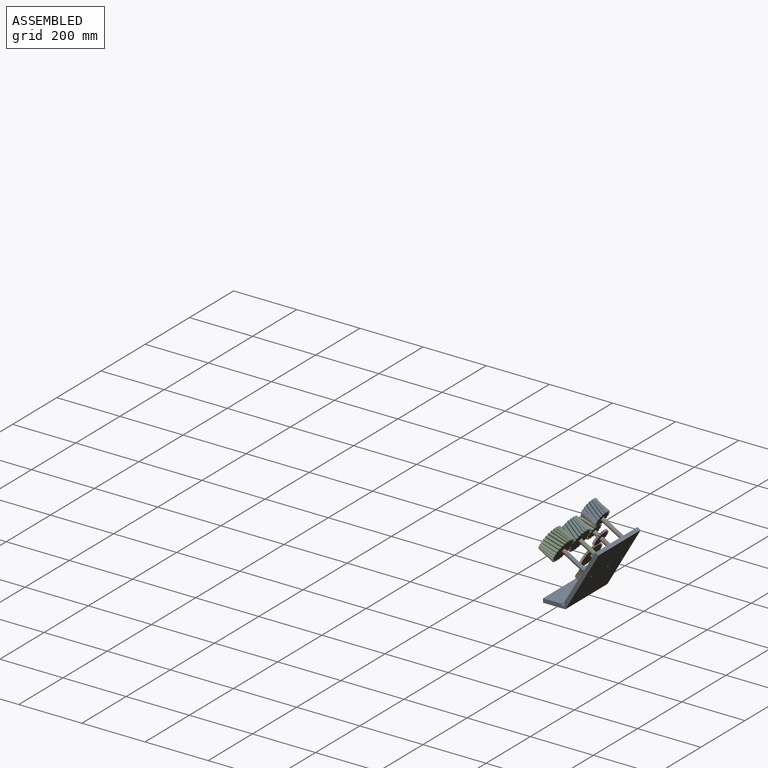
[diagram: assembled view]
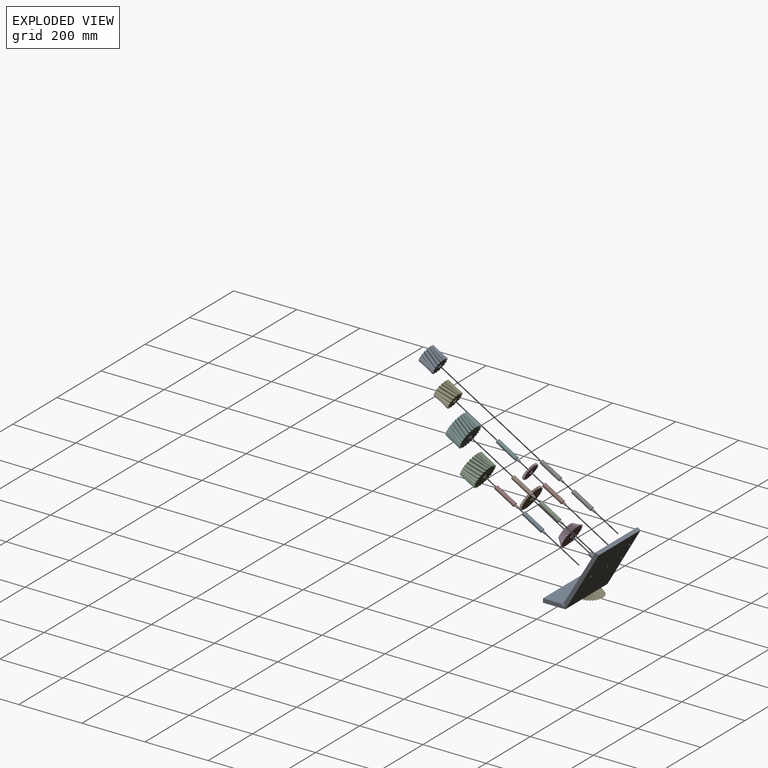
[diagram: exploded view]
GUIDED TOUR — MATED ASSEMBLY (Onshape document b28ac6cc2bc0bf8509f727c4, AutoMate assembly b28ac6cc2bc0bf8509f727c4_57bdf5e7283f3f6957dac1f3_2d047fa930e552a47f79e202_default)

This assembly has 17 components, labeled P0..P16 below (a component is one placed occurrence of a part; the same part can appear more than once), held together by 16 mates. A mate is a constraint between two components; its type names the relative motion it leaves free:
  FASTENED — locks the two components together rigidly (no relative motion),
  REVOLUTE — leaves rotation about the listed axis free (a hinge).
Axis/direction vectors are unit vectors and 'through' points are millimeter coordinates, both in the assembly's world frame.

MATES
  1. REVOLUTE "Revolute 7": P12 <-> P13, axis (-0.864, 0.000, 0.504) through (-116.95, 79.64, 92.24) mm
  2. REVOLUTE "Revolute 5": P9 <-> P0, axis (-0.864, 0.000, 0.504) through (-87.12, 79.64, 1.38) mm
  3. REVOLUTE "Revolute 6": P11 <-> P7, axis (-0.864, 0.000, 0.504) through (-56.62, 79.64, 57.04) mm
  4. REVOLUTE "Revolute 8": P16 <-> P14, axis (-0.864, 0.000, 0.504) through (-91.36, 79.64, 136.12) mm
  5. REVOLUTE "Revolute 2": P4 <-> P0, axis (0.000, 0.000, -1.000) through (-85.58, 79.64, -65.93) mm
  6. FASTENED "Fastened 5": P6 <-> P0, direction (-0.864, 0.000, 0.504) through (29.31, 79.64, 65.73) mm
  7. REVOLUTE "Revolute 1": P3 <-> P0, axis (0.864, 0.000, -0.504) through (-28.25, 79.64, -32.96) mm
  8. FASTENED "Fastened 4": P7 <-> P0, direction (0.864, 0.000, -0.504) through (3.72, 79.64, 21.85) mm
  9. FASTENED "Fastened 6": P15 <-> P8, direction (0.864, 0.000, -0.504) through (-56.62, -60.06, 57.04) mm
  10. REVOLUTE "Revolute 4": P5 <-> P1, axis (-0.864, 0.000, 0.504) through (-116.95, 16.14, 92.24) mm
  11. FASTENED "Fastened 2": P8 <-> P0, direction (0.864, 0.000, -0.504) through (3.72, -60.06, 21.85) mm
  12. FASTENED "Fastened 9": P14 <-> P6, direction (0.864, 0.000, -0.504) through (-31.02, 79.64, 100.92) mm
  13. REVOLUTE "Revolute 3": P2 <-> P15, axis (-0.864, 0.000, 0.504) through (-116.95, -60.06, 92.24) mm
  14. FASTENED "Fastened 3": P10 <-> P0, direction (0.864, 0.000, -0.504) through (3.72, 16.14, 21.85) mm
  15. FASTENED "Fastened 7": P13 <-> P7, direction (0.864, 0.000, -0.504) through (-56.62, 79.64, 57.04) mm
  16. FASTENED "Fastened 8": P1 <-> P10, direction (0.864, 0.000, -0.504) through (-56.62, 16.14, 57.04) mm

ASSEMBLY ORDER
  1. P0 — the base component [order heuristic]
  2. P3 — core [order heuristic]
  3. P4 — core [order heuristic]
  4. P6 — core [order heuristic]
  5. P7 — core [order heuristic]
  6. P8 — core [order heuristic]
  7. P10 — core [order heuristic]
  8. P1 — core [order heuristic]
  9. P11 — core [order heuristic]
  10. P13 — core [order heuristic]
  11. P14 — core [order heuristic]
  12. P15 — core [order heuristic]
  13. P2 — core [order heuristic]
  14. P5 — core [order heuristic]
  15. P12 — core [order heuristic]
  16. P16 — core [order heuristic]
  17. P9 [order verified]
Order-tag legend:
  [order verified] — this step's position reverses a verified removal order: the component was checked to insert without passing through the ones already placed.
  [order heuristic] — the first 16 components form the assembly's core: parts whose collision-free extraction could not be verified, listed in mate-graph order.

Of the 17 components, 11 carry the full construction recipe — the FeatureScript program that regenerates the part's solid from scratch; the rest are supplied as boundary geometry only.
Because this assembly has more than 12 components, the tour below covers the 12 most significant ones individually (every recipe-attached component first, then the largest by part volume), in assembly order; the remaining 5 are summarized together in a grouped section at the end.
Each toured component is shown spotlighted twice — in the assembled view, then in the exploded view, where a leader line traces a displaced component back to its assembled socket (saturated green if recipe-attached, orange if geometry-only; every other component desaturated gray) — followed by its recipe or geometry summary and the mates that hold it.
NOTE — document 2 of 2 of this assembly tour. The two overview renders and the header above are repeated from document 1; the component sections below continue where the previous document stopped.
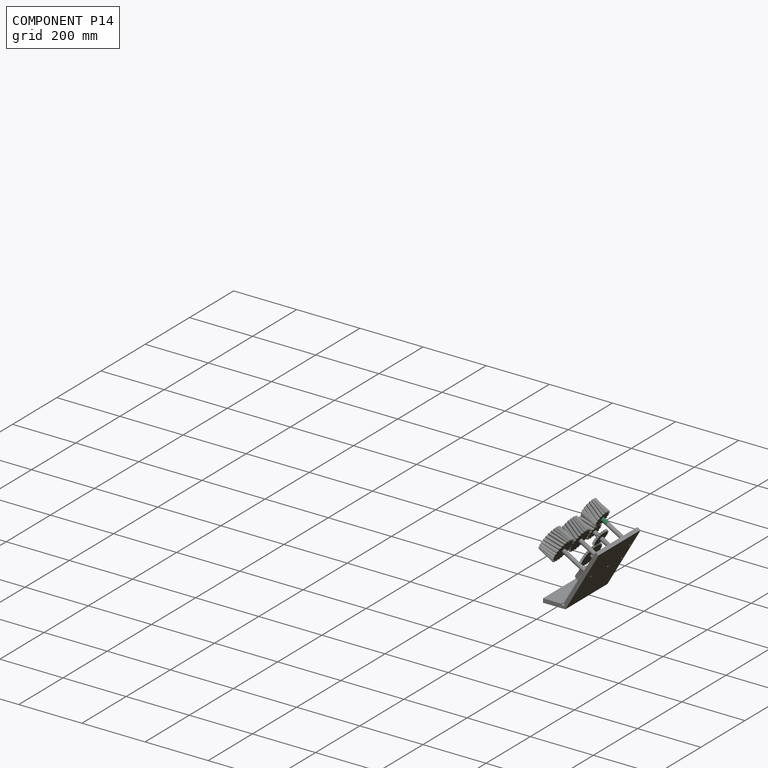
[diagram: component P14 — assembled]
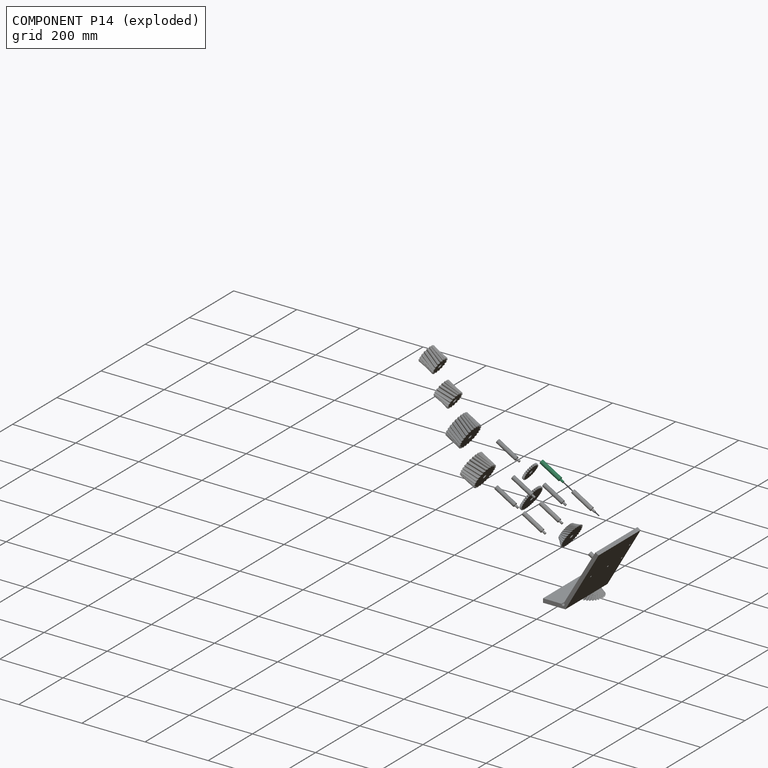
[diagram: component P14 — exploded]
COMPONENT P14 — same part as P1 (CADFS 00306252); its construction recipe is shown at P1.
Held by: REVOLUTE mate "Revolute 8" to P16; FASTENED mate "Fastened 9" to P6.
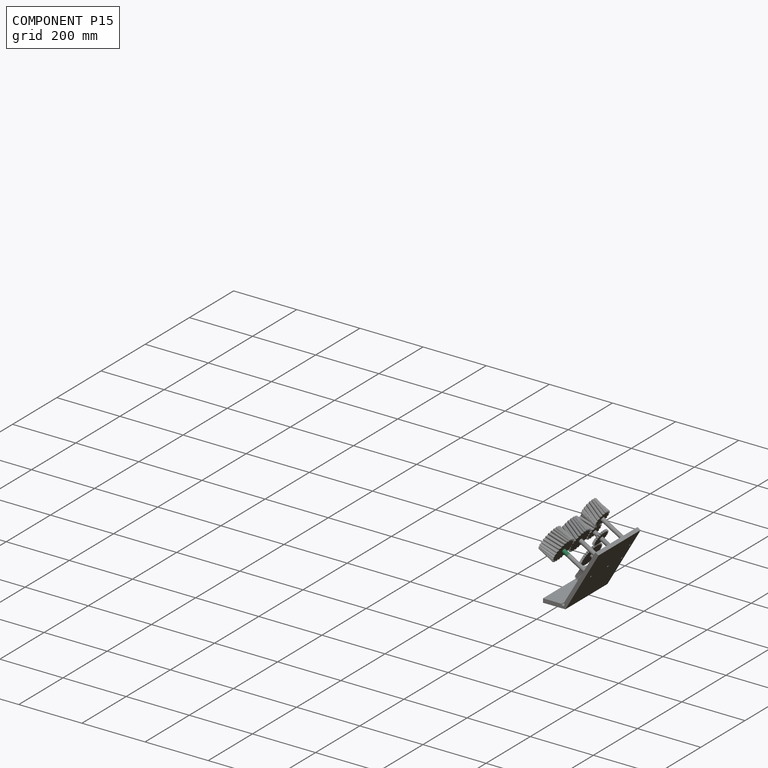
[diagram: component P15 — assembled]
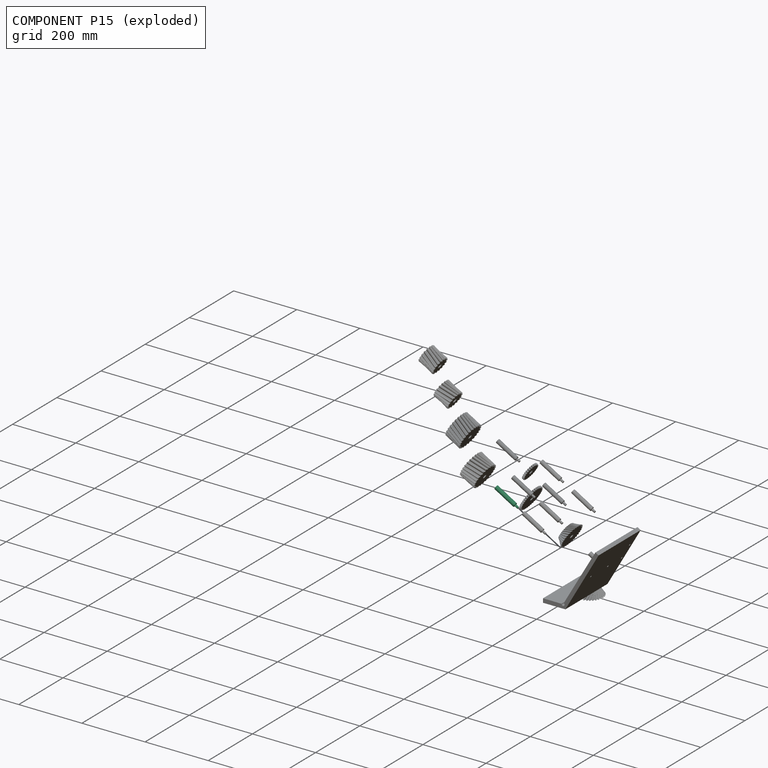
[diagram: component P15 — exploded]
COMPONENT P15 — same part as P1 (CADFS 00306252); its construction recipe is shown at P1.
Held by: FASTENED mate "Fastened 6" to P8; REVOLUTE mate "Revolute 3" to P2.
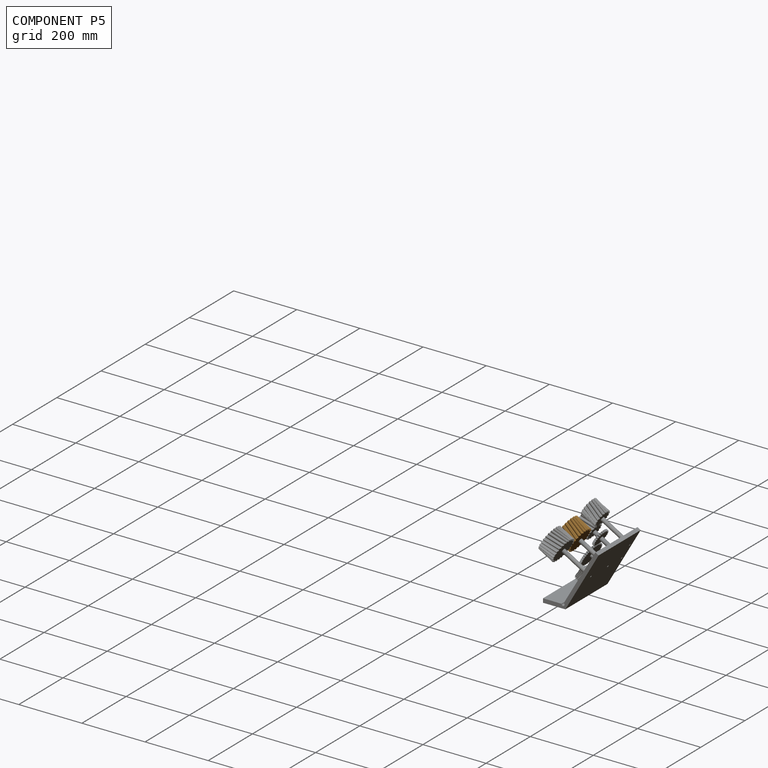
[diagram: component P5 — assembled]
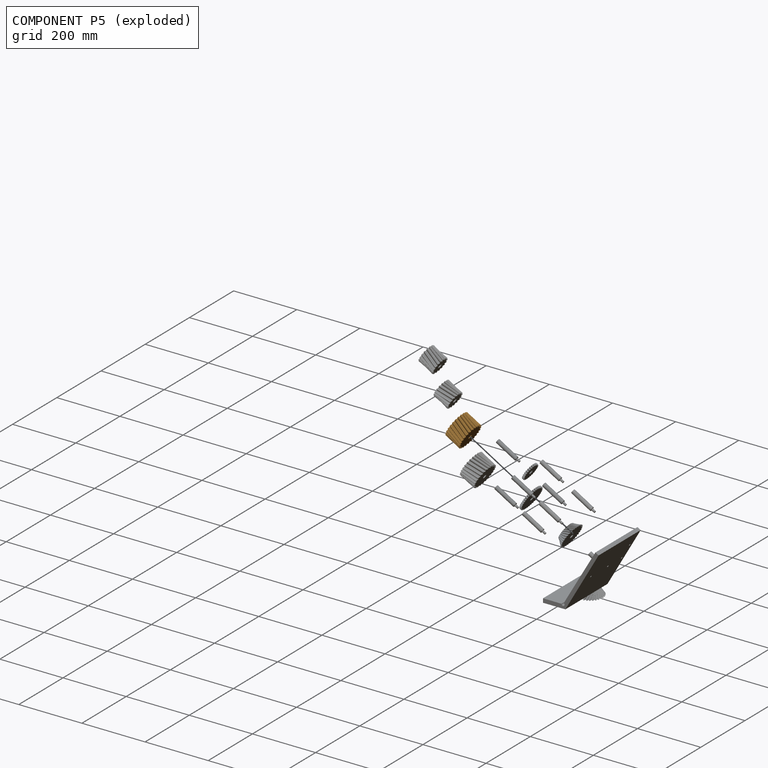
[diagram: component P5 — exploded]
COMPONENT P5 — geometry summary (no construction recipe available for this part):
  bounding box: 82.5 x 82.5 x 50.8 mm
  B-rep topology: 1 solid, 27 faces, 1302 edges
  volume: 234205 mm^3 (68% of its bounding box)
  symmetry: 6-fold rotationally symmetric about the y axis
Held by: REVOLUTE mate "Revolute 4" to P1.
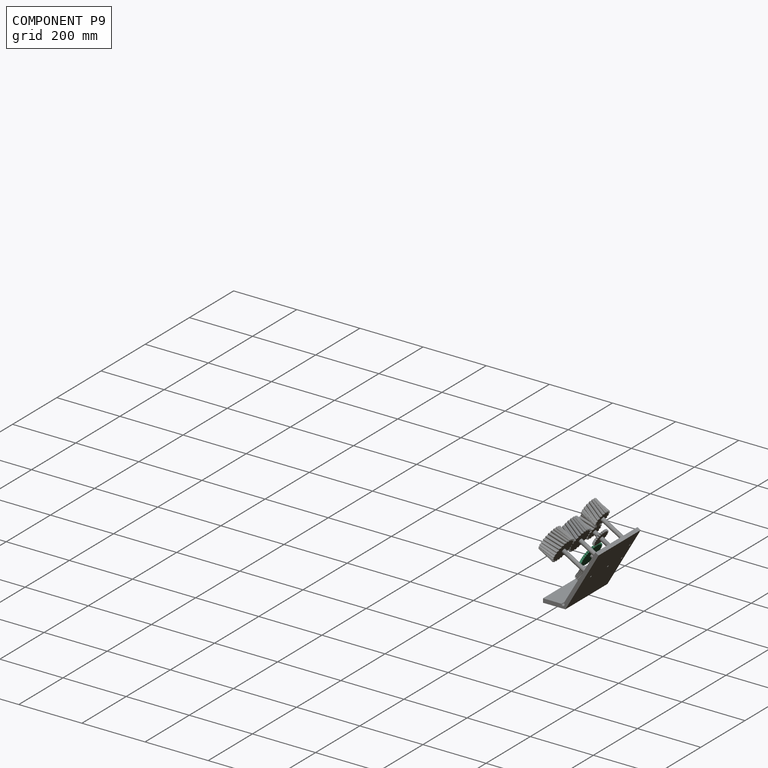
[diagram: component P9 — assembled]
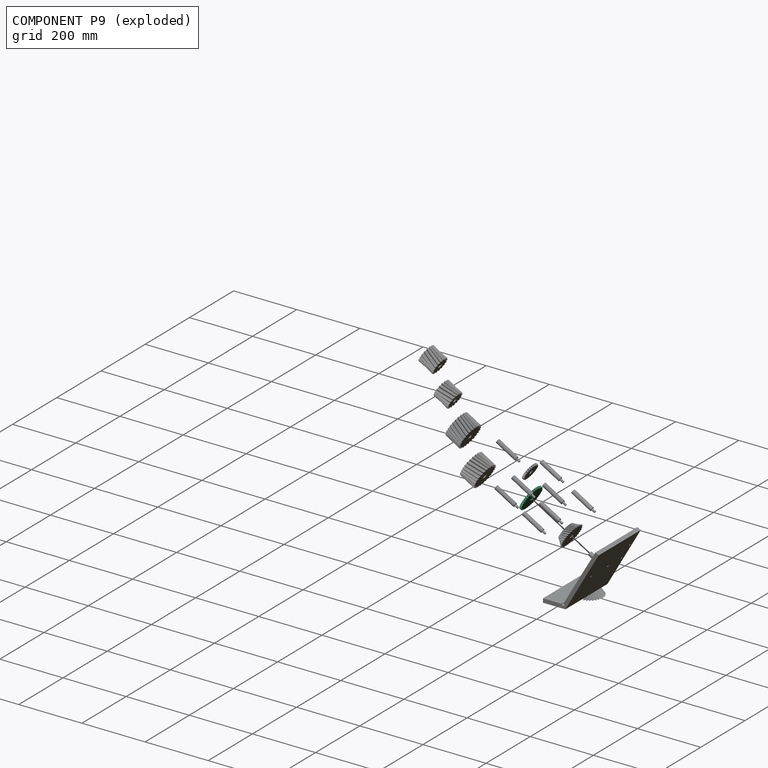
[diagram: component P9 — exploded]
COMPONENT P9 — recipe-attached (CADFS 00306246, mesh-verified: the recipe's output STEP matches this component's geometry to below the mesh-comparison resolution (tessellation chordal tolerance ~0.171 mm)).
Held by: REVOLUTE mate "Revolute 5" to P0.
Construction recipe (FeatureScript — the CAD program that rebuilds this solid; sketch coordinates are in the units given by the * unit suffixes, e.g. mm):

FeatureScript 1511;
import(path : "onshape/std/geometry.fs", version : "1511.0");
import(path : "onshape/std/common.fs", version : "1511.0");
const mm = millimeter;
const VERTEX = EntityType.VERTEX;
const EDGE = EntityType.EDGE;
const FACE = EntityType.FACE;
const BODY = EntityType.BODY;
function v(x, y){return vector(x, y);}
function OD(order){return orderDisambiguation(order);}
function OSD(set){return originalSetDisambiguation(set);}
function TD(topology){return topologyDisambiguation(topology);}
function TDD(query){return trueDependencyDisambiguation(query);}
function sQuery(a, b, c) {return sketchEntityQuery(a, b, c);}

annotation { "Feature Type Name" : "Feature", "Feature Type Description" : "" }
export const myFeature = defineFeature(function(context is Context, id is Id, definition is map)
    precondition{}
    {
        {
            var Q0;
            Q0=qCreatedBy(makeId("Front.planeOp"),FACE);
            var sketch = newSketch(context, id + "F0", { "sketchPlane" : qUnion([Q0])});
            skCircle(sketch, "E0", {"center": v(0, 0) * mm, "radius": 35.98 * mm});
            skSolve(sketch);
        }
        {
            var Q0;
            Q0 = qSketchRegion(id + "F0", true);
            extrude(context, id + "F1", {"entities" : qUnion([Q0]), "depth" : 3.17 * mm});
        }
        {
            var Q0;
            Q0=makeQuery(id+"F1.opExtrude","CAP_FACE",FACE,{"disambiguationData":[OSD([sQuery(id+"F0.wireOp",EDGE,"E0")])],"isStart":true});
            extrude(context, id + "F2", {"entities" : qUnion([Q0]), "operationType" : NewBodyOperationType.ADD, "depth" : 3.17 * mm});
        }
        {
            var Q0;
            Q0=makeQuery(id+"F1.opExtrude","CAP_FACE",FACE,{"disambiguationData":[OSD([sQuery(id+"F0.wireOp",EDGE,"E0")])],"isStart":false});
            var sketch = newSketch(context, id + "F3", { "sketchPlane" : qUnion([Q0])});
            skArc(sketch, "E1", {"start": v(-4.65, 35.68) * mm, "mid": v(1.57, -35.95) * mm, "end": v(1.52, 35.95) * mm});
            skArc(sketch, "E2.trimOffspring", {"start": v(-0.13, 38.41) * mm, "mid": v(-0.44, 39.08) * mm, "end": v(-0.8, 39.72) * mm});
            skLineSegment(sketch, "E3", {"start": v(-1.67, 40.2) * mm, "end": v(-1.76, 40.2) * mm});
            skLineSegment(sketch, "E4", {"start": v(0, 37.8) * mm, "end": v(0, 37.54) * mm});
            skLineSegment(sketch, "E5.MirrorCS", {"start": v(-1.84, 40.2) * mm, "end": v(-1.76, 40.2) * mm});
            skArc(sketch, "E6.MirrorCS", {"start": v(-3.22, 38.28) * mm, "mid": v(-2.97, 38.97) * mm, "end": v(-2.66, 39.64) * mm});
            skLineSegment(sketch, "E7.MirrorCS", {"start": v(-3.3, 37.65) * mm, "end": v(-3.27, 37.4) * mm});
            skPoint(sketch, "E8.orphan", {"position": v(-3.03, 34.61) * mm});
            skPoint(sketch, "E9.orphan", {"position": v(0, 34.74) * mm});
            skPoint(sketch, "E10.visualSharp", {"position": v(0, 35.98) * mm});
            skArc(sketch, "E10.filletArc", {"start": v(0, 36.45) * mm, "mid": v(0.13, 36.12) * mm, "end": v(0.46, 35.98) * mm});
            skArc(sketch, "E11.filletArc", {"start": v(0, 37.54) * mm, "mid": v(0.44, 36.44) * mm, "end": v(1.52, 35.95) * mm});
            skPoint(sketch, "E12.visualSharp", {"position": v(-3.14, 35.85) * mm});
            skArc(sketch, "E12.filletArc", {"start": v(-4.65, 35.68) * mm, "mid": v(-3.62, 36.26) * mm, "end": v(-3.27, 37.4) * mm});
            skPoint(sketch, "E13.visualSharp", {"position": v(0, 38.1) * mm});
            skArc(sketch, "E13.filletArc", {"start": v(0, 37.8) * mm, "mid": v(-0.03, 38.1) * mm, "end": v(-0.13, 38.41) * mm});
            skPoint(sketch, "E14.visualSharp", {"position": v(-3.32, 37.96) * mm});
            skArc(sketch, "E14.filletArc", {"start": v(-3.22, 38.28) * mm, "mid": v(-3.29, 37.97) * mm, "end": v(-3.3, 37.65) * mm});
            skPoint(sketch, "E15.visualSharp", {"position": v(-2.38, 40.15) * mm});
            skArc(sketch, "E15.filletArc", {"start": v(-1.84, 40.2) * mm, "mid": v(-2.32, 40.02) * mm, "end": v(-2.66, 39.64) * mm});
            skPoint(sketch, "E16.visualSharp", {"position": v(-1.13, 40.2) * mm});
            skArc(sketch, "E16.filletArc", {"start": v(-0.8, 39.72) * mm, "mid": v(-1.18, 40.07) * mm, "end": v(-1.67, 40.2) * mm});
            skArc(sketch, "E17.1.0", {"start": v(-6.52, 36.97) * mm, "mid": v(-5.9, 35.96) * mm, "end": v(-4.75, 35.67) * mm});
            skArc(sketch, "E17.1.1", {"start": v(-10.77, 34.33) * mm, "mid": v(-9.86, 35.08) * mm, "end": v(-9.72, 36.26) * mm});
            skArc(sketch, "E17.1.2", {"start": v(-8.8, 39.26) * mm, "mid": v(-9.23, 39.01) * mm, "end": v(-9.5, 38.58) * mm});
            skArc(sketch, "E17.1.3", {"start": v(-9.82, 37.14) * mm, "mid": v(-9.69, 37.86) * mm, "end": v(-9.5, 38.58) * mm});
            skPoint(sketch, "E17.1.4", {"position": v(-8.1, 39.4) * mm});
            skPoint(sketch, "E17.1.5", {"position": v(-6.62, 37.52) * mm});
            skPoint(sketch, "E17.1.6", {"position": v(-9.86, 36.8) * mm});
            skPoint(sketch, "E17.1.7", {"position": v(-9.32, 39.12) * mm});
            skArc(sketch, "E17.1.8", {"start": v(-6.8, 37.8) * mm, "mid": v(-7.22, 38.41) * mm, "end": v(-7.7, 38.98) * mm});
            skArc(sketch, "E17.1.9", {"start": v(-7.7, 38.98) * mm, "mid": v(-8.12, 39.26) * mm, "end": v(-8.63, 39.3) * mm});
            skArc(sketch, "E17.1.10", {"start": v(-6.56, 37.22) * mm, "mid": v(-6.65, 37.52) * mm, "end": v(-6.8, 37.8) * mm});
            skArc(sketch, "E17.1.11", {"start": v(-9.82, 37.14) * mm, "mid": v(-9.83, 36.82) * mm, "end": v(-9.78, 36.5) * mm});
            skLineSegment(sketch, "E17.1.12", {"start": v(-8.8, 39.26) * mm, "end": v(-8.7, 39.29) * mm});
            skLineSegment(sketch, "E17.1.13", {"start": v(-9.78, 36.5) * mm, "end": v(-9.72, 36.26) * mm});
            skLineSegment(sketch, "E17.1.14", {"start": v(-6.56, 37.22) * mm, "end": v(-6.52, 36.97) * mm});
            skLineSegment(sketch, "E17.1.15", {"start": v(-8.63, 39.3) * mm, "end": v(-8.7, 39.29) * mm});
            skArc(sketch, "E17.2.0", {"start": v(-12.84, 35.27) * mm, "mid": v(-12.05, 34.4) * mm, "end": v(-10.87, 34.3) * mm});
            skArc(sketch, "E17.2.1", {"start": v(-16.57, 31.94) * mm, "mid": v(-15.8, 32.84) * mm, "end": v(-15.86, 34.02) * mm});
            skArc(sketch, "E17.2.2", {"start": v(-15.48, 37.14) * mm, "mid": v(-15.87, 36.82) * mm, "end": v(-16.05, 36.34) * mm});
            skArc(sketch, "E17.2.3", {"start": v(-16.12, 34.87) * mm, "mid": v(-16.12, 35.6) * mm, "end": v(-16.05, 36.34) * mm});
            skPoint(sketch, "E17.2.4", {"position": v(-14.8, 37.4) * mm});
            skPoint(sketch, "E17.2.5", {"position": v(-13.03, 35.8) * mm});
            skPoint(sketch, "E17.2.6", {"position": v(-16.1, 34.53) * mm});
            skPoint(sketch, "E17.2.7", {"position": v(-15.97, 36.91) * mm});
            skArc(sketch, "E17.2.8", {"start": v(-13.26, 36.05) * mm, "mid": v(-13.78, 36.57) * mm, "end": v(-14.35, 37.05) * mm});
            skArc(sketch, "E17.2.9", {"start": v(-14.35, 37.05) * mm, "mid": v(-14.81, 37.25) * mm, "end": v(-15.32, 37.2) * mm});
            skArc(sketch, "E17.2.10", {"start": v(-12.93, 35.51) * mm, "mid": v(-13.06, 35.8) * mm, "end": v(-13.26, 36.05) * mm});
            skArc(sketch, "E17.2.11", {"start": v(-16.12, 34.87) * mm, "mid": v(-16.08, 34.55) * mm, "end": v(-15.97, 34.25) * mm});
            skLineSegment(sketch, "E17.2.12", {"start": v(-15.48, 37.14) * mm, "end": v(-15.4, 37.18) * mm});
            skLineSegment(sketch, "E17.2.13", {"start": v(-15.97, 34.25) * mm, "end": v(-15.86, 34.02) * mm});
            skLineSegment(sketch, "E17.2.14", {"start": v(-12.93, 35.51) * mm, "end": v(-12.84, 35.27) * mm});
            skLineSegment(sketch, "E17.2.15", {"start": v(-15.32, 37.2) * mm, "end": v(-15.4, 37.18) * mm});
            skArc(sketch, "E18.3.3.0", {"start": v(-18.77, 32.5) * mm, "mid": v(-17.84, 31.78) * mm, "end": v(-16.66, 31.9) * mm});
            skArc(sketch, "E18.4.3.0", {"start": v(-21.87, 28.58) * mm, "mid": v(-21.26, 29.6) * mm, "end": v(-21.53, 30.75) * mm});
            skArc(sketch, "E18.8.3.0", {"start": v(-21.69, 33.89) * mm, "mid": v(-22.02, 33.5) * mm, "end": v(-22.12, 33) * mm});
            skArc(sketch, "E18.12.3.0", {"start": v(-21.93, 31.54) * mm, "mid": v(-22.05, 32.27) * mm, "end": v(-22.12, 33) * mm});
            skPoint(sketch, "E18.16.3.0", {"position": v(-21.08, 34.25) * mm});
            skPoint(sketch, "E18.17.3.0", {"position": v(-19.05, 33) * mm});
            skPoint(sketch, "E18.18.3.0", {"position": v(-21.85, 31.2) * mm});
            skPoint(sketch, "E18.19.3.0", {"position": v(-22.13, 33.58) * mm});
            skArc(sketch, "E18.20.3.0", {"start": v(-19.32, 33.2) * mm, "mid": v(-19.92, 33.62) * mm, "end": v(-20.56, 34) * mm});
            skArc(sketch, "E18.24.3.0", {"start": v(-20.56, 34) * mm, "mid": v(-21.06, 34.12) * mm, "end": v(-21.55, 33.98) * mm});
            skArc(sketch, "E18.28.3.0", {"start": v(-18.9, 32.73) * mm, "mid": v(-19.08, 32.99) * mm, "end": v(-19.32, 33.2) * mm});
            skArc(sketch, "E18.32.3.0", {"start": v(-21.93, 31.54) * mm, "mid": v(-21.83, 31.24) * mm, "end": v(-21.68, 30.96) * mm});
            skLineSegment(sketch, "E18.36.3.0", {"start": v(-21.69, 33.89) * mm, "end": v(-21.62, 33.94) * mm});
            skLineSegment(sketch, "E18.39.3.0", {"start": v(-21.68, 30.96) * mm, "end": v(-21.53, 30.75) * mm});
            skLineSegment(sketch, "E18.42.3.0", {"start": v(-18.9, 32.73) * mm, "end": v(-18.77, 32.5) * mm});
            skLineSegment(sketch, "E18.45.3.0", {"start": v(-21.55, 33.98) * mm, "end": v(-21.62, 33.94) * mm});
            skArc(sketch, "E18.3.4.0", {"start": v(-24.13, 28.76) * mm, "mid": v(-23.08, 28.2) * mm, "end": v(-21.94, 28.52) * mm});
            skArc(sketch, "E18.4.4.0", {"start": v(-26.5, 24.35) * mm, "mid": v(-26.08, 25.45) * mm, "end": v(-26.54, 26.54) * mm});
            skArc(sketch, "E18.8.4.0", {"start": v(-27.24, 29.6) * mm, "mid": v(-27.5, 29.17) * mm, "end": v(-27.52, 28.66) * mm});
            skArc(sketch, "E18.12.4.0", {"start": v(-27.07, 27.25) * mm, "mid": v(-27.32, 27.95) * mm, "end": v(-27.52, 28.66) * mm});
            skPoint(sketch, "E18.16.4.0", {"position": v(-26.7, 30.07) * mm});
            skPoint(sketch, "E18.17.4.0", {"position": v(-24.5, 29.19) * mm});
            skPoint(sketch, "E18.18.4.0", {"position": v(-26.94, 26.94) * mm});
            skPoint(sketch, "E18.19.4.0", {"position": v(-27.63, 29.22) * mm});
            skArc(sketch, "E18.20.4.0", {"start": v(-24.79, 29.34) * mm, "mid": v(-25.46, 29.65) * mm, "end": v(-26.15, 29.9) * mm});
            skArc(sketch, "E18.24.4.0", {"start": v(-26.15, 29.9) * mm, "mid": v(-26.66, 29.94) * mm, "end": v(-27.12, 29.72) * mm});
            skArc(sketch, "E18.28.4.0", {"start": v(-24.3, 28.95) * mm, "mid": v(-24.52, 29.17) * mm, "end": v(-24.79, 29.34) * mm});
            skArc(sketch, "E18.32.4.0", {"start": v(-27.07, 27.25) * mm, "mid": v(-26.92, 26.97) * mm, "end": v(-26.72, 26.72) * mm});
            skLineSegment(sketch, "E18.36.4.0", {"start": v(-27.24, 29.6) * mm, "end": v(-27.19, 29.67) * mm});
            skLineSegment(sketch, "E18.39.4.0", {"start": v(-26.72, 26.72) * mm, "end": v(-26.54, 26.54) * mm});
            skLineSegment(sketch, "E18.42.4.0", {"start": v(-24.3, 28.95) * mm, "end": v(-24.13, 28.76) * mm});
            skLineSegment(sketch, "E18.45.4.0", {"start": v(-27.12, 29.72) * mm, "end": v(-27.19, 29.67) * mm});
            skArc(sketch, "E18.3.5.0", {"start": v(-28.76, 24.13) * mm, "mid": v(-27.63, 23.76) * mm, "end": v(-26.56, 24.27) * mm});
            skArc(sketch, "E18.4.5.0", {"start": v(-30.32, 19.38) * mm, "mid": v(-30.1, 20.54) * mm, "end": v(-30.75, 21.53) * mm});
            skArc(sketch, "E18.8.5.0", {"start": v(-31.97, 24.43) * mm, "mid": v(-32.15, 23.95) * mm, "end": v(-32.07, 23.45) * mm});
            skArc(sketch, "E18.12.5.0", {"start": v(-31.4, 22.14) * mm, "mid": v(-31.76, 22.78) * mm, "end": v(-32.07, 23.45) * mm});
            skPoint(sketch, "E18.16.5.0", {"position": v(-31.52, 24.98) * mm});
            skPoint(sketch, "E18.17.5.0", {"position": v(-29.19, 24.5) * mm});
            skPoint(sketch, "E18.18.5.0", {"position": v(-31.2, 21.85) * mm});
            skPoint(sketch, "E18.19.5.0", {"position": v(-32.28, 23.98) * mm});
            skArc(sketch, "E18.20.5.0", {"start": v(-29.5, 24.6) * mm, "mid": v(-30.22, 24.78) * mm, "end": v(-30.95, 24.91) * mm});
            skArc(sketch, "E18.24.5.0", {"start": v(-30.95, 24.91) * mm, "mid": v(-31.46, 24.86) * mm, "end": v(-31.87, 24.56) * mm});
            skArc(sketch, "E18.28.5.0", {"start": v(-28.95, 24.3) * mm, "mid": v(-29.21, 24.47) * mm, "end": v(-29.5, 24.6) * mm});
            skArc(sketch, "E18.32.5.0", {"start": v(-31.4, 22.14) * mm, "mid": v(-31.2, 21.88) * mm, "end": v(-30.96, 21.68) * mm});
            skLineSegment(sketch, "E18.36.5.0", {"start": v(-31.97, 24.43) * mm, "end": v(-31.92, 24.5) * mm});
            skLineSegment(sketch, "E18.39.5.0", {"start": v(-30.96, 21.68) * mm, "end": v(-30.75, 21.53) * mm});
            skLineSegment(sketch, "E18.42.5.0", {"start": v(-28.95, 24.3) * mm, "end": v(-28.76, 24.13) * mm});
            skLineSegment(sketch, "E18.45.5.0", {"start": v(-31.87, 24.56) * mm, "end": v(-31.92, 24.5) * mm});
            skArc(sketch, "E18.3.6.0", {"start": v(-32.5, 18.77) * mm, "mid": v(-31.34, 18.6) * mm, "end": v(-30.37, 19.3) * mm});
            skArc(sketch, "E18.4.6.0", {"start": v(-33.23, 13.82) * mm, "mid": v(-33.21, 15) * mm, "end": v(-34.02, 15.86) * mm});
            skArc(sketch, "E18.8.6.0", {"start": v(-35.73, 18.5) * mm, "mid": v(-35.82, 18) * mm, "end": v(-35.66, 17.52) * mm});
            skArc(sketch, "E18.12.6.0", {"start": v(-34.76, 16.35) * mm, "mid": v(-35.23, 16.92) * mm, "end": v(-35.66, 17.52) * mm});
            skPoint(sketch, "E18.16.6.0", {"position": v(-35.38, 19.12) * mm});
            skPoint(sketch, "E18.17.6.0", {"position": v(-33, 19.05) * mm});
            skPoint(sketch, "E18.18.6.0", {"position": v(-34.53, 16.1) * mm});
            skPoint(sketch, "E18.19.6.0", {"position": v(-35.96, 18.01) * mm});
            skArc(sketch, "E18.20.6.0", {"start": v(-33.33, 19.1) * mm, "mid": v(-34.07, 19.16) * mm, "end": v(-34.8, 19.16) * mm});
            skArc(sketch, "E18.24.6.0", {"start": v(-34.8, 19.16) * mm, "mid": v(-35.3, 19.02) * mm, "end": v(-35.65, 18.65) * mm});
            skArc(sketch, "E18.28.6.0", {"start": v(-32.73, 18.9) * mm, "mid": v(-33.02, 19.03) * mm, "end": v(-33.33, 19.1) * mm});
            skArc(sketch, "E18.32.6.0", {"start": v(-34.76, 16.35) * mm, "mid": v(-34.52, 16.13) * mm, "end": v(-34.25, 15.97) * mm});
            skLineSegment(sketch, "E18.36.6.0", {"start": v(-35.73, 18.5) * mm, "end": v(-35.7, 18.58) * mm});
            skLineSegment(sketch, "E18.39.6.0", {"start": v(-34.25, 15.97) * mm, "end": v(-34.02, 15.86) * mm});
            skLineSegment(sketch, "E18.42.6.0", {"start": v(-32.73, 18.9) * mm, "end": v(-32.5, 18.77) * mm});
            skLineSegment(sketch, "E18.45.6.0", {"start": v(-35.65, 18.65) * mm, "end": v(-35.7, 18.58) * mm});
            skArc(sketch, "E18.3.7.0", {"start": v(-35.27, 12.84) * mm, "mid": v(-34.1, 12.88) * mm, "end": v(-33.26, 13.72) * mm});
            skArc(sketch, "E18.4.7.0", {"start": v(-35.12, 7.84) * mm, "mid": v(-35.31, 9) * mm, "end": v(-36.26, 9.72) * mm});
            skArc(sketch, "E18.8.7.0", {"start": v(-38.4, 12.02) * mm, "mid": v(-38.4, 11.5) * mm, "end": v(-38.16, 11.06) * mm});
            skArc(sketch, "E18.12.7.0", {"start": v(-37.07, 10.06) * mm, "mid": v(-37.64, 10.54) * mm, "end": v(-38.16, 11.06) * mm});
            skPoint(sketch, "E18.16.7.0", {"position": v(-38.16, 12.69) * mm});
            skPoint(sketch, "E18.17.7.0", {"position": v(-35.8, 13.03) * mm});
            skPoint(sketch, "E18.18.7.0", {"position": v(-36.8, 9.86) * mm});
            skPoint(sketch, "E18.19.7.0", {"position": v(-38.54, 11.5) * mm});
            skArc(sketch, "E18.20.7.0", {"start": v(-36.14, 13.02) * mm, "mid": v(-36.88, 12.95) * mm, "end": v(-37.6, 12.83) * mm});
            skArc(sketch, "E18.24.7.0", {"start": v(-37.6, 12.83) * mm, "mid": v(-38.06, 12.6) * mm, "end": v(-38.35, 12.18) * mm});
            skArc(sketch, "E18.28.7.0", {"start": v(-35.51, 12.93) * mm, "mid": v(-35.82, 13) * mm, "end": v(-36.14, 13.02) * mm});
            skArc(sketch, "E18.32.7.0", {"start": v(-37.07, 10.06) * mm, "mid": v(-36.8, 9.9) * mm, "end": v(-36.5, 9.78) * mm});
            skLineSegment(sketch, "E18.36.7.0", {"start": v(-38.4, 12.02) * mm, "end": v(-38.38, 12.1) * mm});
            skLineSegment(sketch, "E18.39.7.0", {"start": v(-36.5, 9.78) * mm, "end": v(-36.26, 9.72) * mm});
            skLineSegment(sketch, "E18.42.7.0", {"start": v(-35.51, 12.93) * mm, "end": v(-35.27, 12.84) * mm});
            skLineSegment(sketch, "E18.45.7.0", {"start": v(-38.35, 12.18) * mm, "end": v(-38.38, 12.1) * mm});
            skArc(sketch, "E18.3.8.0", {"start": v(-36.97, 6.52) * mm, "mid": v(-35.8, 6.76) * mm, "end": v(-35.14, 7.74) * mm});
            skArc(sketch, "E18.4.8.0", {"start": v(-35.95, 1.62) * mm, "mid": v(-36.34, 2.74) * mm, "end": v(-37.4, 3.27) * mm});
            skArc(sketch, "E18.8.8.0", {"start": v(-39.9, 5.17) * mm, "mid": v(-39.82, 4.67) * mm, "end": v(-39.5, 4.27) * mm});
            skArc(sketch, "E18.12.8.0", {"start": v(-38.26, 3.47) * mm, "mid": v(-38.9, 3.85) * mm, "end": v(-39.5, 4.27) * mm});
            skPoint(sketch, "E18.16.8.0", {"position": v(-39.79, 5.87) * mm});
            skPoint(sketch, "E18.17.8.0", {"position": v(-37.52, 6.62) * mm});
            skPoint(sketch, "E18.18.8.0", {"position": v(-37.96, 3.32) * mm});
            skPoint(sketch, "E18.19.8.0", {"position": v(-39.95, 4.63) * mm});
            skArc(sketch, "E18.20.8.0", {"start": v(-37.85, 6.55) * mm, "mid": v(-38.56, 6.35) * mm, "end": v(-39.26, 6.1) * mm});
            skArc(sketch, "E18.24.8.0", {"start": v(-39.26, 6.1) * mm, "mid": v(-39.67, 5.8) * mm, "end": v(-39.88, 5.34) * mm});
            skArc(sketch, "E18.28.8.0", {"start": v(-37.22, 6.56) * mm, "mid": v(-37.54, 6.59) * mm, "end": v(-37.85, 6.55) * mm});
            skArc(sketch, "E18.32.8.0", {"start": v(-38.26, 3.47) * mm, "mid": v(-37.96, 3.35) * mm, "end": v(-37.65, 3.3) * mm});
            skLineSegment(sketch, "E18.36.8.0", {"start": v(-39.9, 5.17) * mm, "end": v(-39.9, 5.25) * mm});
            skLineSegment(sketch, "E18.39.8.0", {"start": v(-37.65, 3.3) * mm, "end": v(-37.4, 3.27) * mm});
            skLineSegment(sketch, "E18.42.8.0", {"start": v(-37.22, 6.56) * mm, "end": v(-36.97, 6.52) * mm});
            skLineSegment(sketch, "E18.45.8.0", {"start": v(-39.88, 5.34) * mm, "end": v(-39.9, 5.25) * mm});
            skArc(sketch, "E18.3.9.0", {"start": v(-37.54, 0) * mm, "mid": v(-36.44, 0.44) * mm, "end": v(-35.95, 1.52) * mm});
            skArc(sketch, "E18.4.9.0", {"start": v(-35.68, -4.65) * mm, "mid": v(-36.26, -3.62) * mm, "end": v(-37.4, -3.27) * mm});
            skArc(sketch, "E18.8.9.0", {"start": v(-40.2, -1.84) * mm, "mid": v(-40.02, -2.32) * mm, "end": v(-39.64, -2.66) * mm});
            skArc(sketch, "E18.12.9.0", {"start": v(-38.28, -3.22) * mm, "mid": v(-38.97, -2.97) * mm, "end": v(-39.64, -2.66) * mm});
            skPoint(sketch, "E18.16.9.0", {"position": v(-40.2, -1.13) * mm});
            skPoint(sketch, "E18.17.9.0", {"position": v(-38.1, 0) * mm});
            skPoint(sketch, "E18.18.9.0", {"position": v(-37.96, -3.32) * mm});
            skPoint(sketch, "E18.19.9.0", {"position": v(-40.15, -2.38) * mm});
            skArc(sketch, "E18.20.9.0", {"start": v(-38.41, -0.13) * mm, "mid": v(-39.08, -0.44) * mm, "end": v(-39.72, -0.8) * mm});
            skArc(sketch, "E18.24.9.0", {"start": v(-39.72, -0.8) * mm, "mid": v(-40.07, -1.18) * mm, "end": v(-40.2, -1.67) * mm});
            skArc(sketch, "E18.28.9.0", {"start": v(-37.8, 0) * mm, "mid": v(-38.1, -0.03) * mm, "end": v(-38.41, -0.13) * mm});
            skArc(sketch, "E18.32.9.0", {"start": v(-38.28, -3.22) * mm, "mid": v(-37.97, -3.29) * mm, "end": v(-37.65, -3.3) * mm});
            skLineSegment(sketch, "E18.36.9.0", {"start": v(-40.2, -1.84) * mm, "end": v(-40.2, -1.76) * mm});
            skLineSegment(sketch, "E18.39.9.0", {"start": v(-37.65, -3.3) * mm, "end": v(-37.4, -3.27) * mm});
            skLineSegment(sketch, "E18.42.9.0", {"start": v(-37.8, 0) * mm, "end": v(-37.54, 0) * mm});
            skLineSegment(sketch, "E18.45.9.0", {"start": v(-40.2, -1.67) * mm, "end": v(-40.2, -1.76) * mm});
            skArc(sketch, "E18.3.10.0", {"start": v(-36.97, -6.52) * mm, "mid": v(-35.96, -5.9) * mm, "end": v(-35.67, -4.75) * mm});
            skArc(sketch, "E18.4.10.0", {"start": v(-34.33, -10.77) * mm, "mid": v(-35.08, -9.86) * mm, "end": v(-36.26, -9.72) * mm});
            skArc(sketch, "E18.8.10.0", {"start": v(-39.26, -8.8) * mm, "mid": v(-39.01, -9.23) * mm, "end": v(-38.58, -9.5) * mm});
            skArc(sketch, "E18.12.10.0", {"start": v(-37.14, -9.82) * mm, "mid": v(-37.86, -9.69) * mm, "end": v(-38.58, -9.5) * mm});
            skPoint(sketch, "E18.16.10.0", {"position": v(-39.4, -8.1) * mm});
            skPoint(sketch, "E18.17.10.0", {"position": v(-37.52, -6.62) * mm});
            skPoint(sketch, "E18.18.10.0", {"position": v(-36.8, -9.86) * mm});
            skPoint(sketch, "E18.19.10.0", {"position": v(-39.12, -9.32) * mm});
            skArc(sketch, "E18.20.10.0", {"start": v(-37.8, -6.8) * mm, "mid": v(-38.41, -7.22) * mm, "end": v(-38.98, -7.7) * mm});
            skArc(sketch, "E18.24.10.0", {"start": v(-38.98, -7.7) * mm, "mid": v(-39.26, -8.12) * mm, "end": v(-39.3, -8.63) * mm});
            skArc(sketch, "E18.28.10.0", {"start": v(-37.22, -6.56) * mm, "mid": v(-37.52, -6.65) * mm, "end": v(-37.8, -6.8) * mm});
            skArc(sketch, "E18.32.10.0", {"start": v(-37.14, -9.82) * mm, "mid": v(-36.82, -9.83) * mm, "end": v(-36.5, -9.78) * mm});
            skLineSegment(sketch, "E18.36.10.0", {"start": v(-39.26, -8.8) * mm, "end": v(-39.29, -8.7) * mm});
            skLineSegment(sketch, "E18.39.10.0", {"start": v(-36.5, -9.78) * mm, "end": v(-36.26, -9.72) * mm});
            skLineSegment(sketch, "E18.42.10.0", {"start": v(-37.22, -6.56) * mm, "end": v(-36.97, -6.52) * mm});
            skLineSegment(sketch, "E18.45.10.0", {"start": v(-39.3, -8.63) * mm, "end": v(-39.29, -8.7) * mm});
            skArc(sketch, "E18.3.11.0", {"start": v(-35.27, -12.84) * mm, "mid": v(-34.4, -12.05) * mm, "end": v(-34.3, -10.87) * mm});
            skArc(sketch, "E18.4.11.0", {"start": v(-31.94, -16.57) * mm, "mid": v(-32.84, -15.8) * mm, "end": v(-34.02, -15.86) * mm});
            skArc(sketch, "E18.8.11.0", {"start": v(-37.14, -15.48) * mm, "mid": v(-36.82, -15.87) * mm, "end": v(-36.34, -16.05) * mm});
            skArc(sketch, "E18.12.11.0", {"start": v(-34.87, -16.12) * mm, "mid": v(-35.6, -16.12) * mm, "end": v(-36.34, -16.05) * mm});
            skPoint(sketch, "E18.16.11.0", {"position": v(-37.4, -14.8) * mm});
            skPoint(sketch, "E18.17.11.0", {"position": v(-35.8, -13.03) * mm});
            skPoint(sketch, "E18.18.11.0", {"position": v(-34.53, -16.1) * mm});
            skPoint(sketch, "E18.19.11.0", {"position": v(-36.91, -15.97) * mm});
            skArc(sketch, "E18.20.11.0", {"start": v(-36.05, -13.26) * mm, "mid": v(-36.57, -13.78) * mm, "end": v(-37.05, -14.35) * mm});
            skArc(sketch, "E18.24.11.0", {"start": v(-37.05, -14.35) * mm, "mid": v(-37.25, -14.81) * mm, "end": v(-37.2, -15.32) * mm});
            skArc(sketch, "E18.28.11.0", {"start": v(-35.51, -12.93) * mm, "mid": v(-35.8, -13.06) * mm, "end": v(-36.05, -13.26) * mm});
            skArc(sketch, "E18.32.11.0", {"start": v(-34.87, -16.12) * mm, "mid": v(-34.55, -16.08) * mm, "end": v(-34.25, -15.97) * mm});
            skLineSegment(sketch, "E18.36.11.0", {"start": v(-37.14, -15.48) * mm, "end": v(-37.18, -15.4) * mm});
            skLineSegment(sketch, "E18.39.11.0", {"start": v(-34.25, -15.97) * mm, "end": v(-34.02, -15.86) * mm});
            skLineSegment(sketch, "E18.42.11.0", {"start": v(-35.51, -12.93) * mm, "end": v(-35.27, -12.84) * mm});
            skLineSegment(sketch, "E18.45.11.0", {"start": v(-37.2, -15.32) * mm, "end": v(-37.18, -15.4) * mm});
            skArc(sketch, "E18.3.12.0", {"start": v(-32.5, -18.77) * mm, "mid": v(-31.78, -17.84) * mm, "end": v(-31.9, -16.66) * mm});
            skArc(sketch, "E18.4.12.0", {"start": v(-28.58, -21.87) * mm, "mid": v(-29.6, -21.26) * mm, "end": v(-30.75, -21.53) * mm});
            skArc(sketch, "E18.8.12.0", {"start": v(-33.89, -21.69) * mm, "mid": v(-33.5, -22.02) * mm, "end": v(-33, -22.12) * mm});
            skArc(sketch, "E18.12.12.0", {"start": v(-31.54, -21.93) * mm, "mid": v(-32.27, -22.05) * mm, "end": v(-33, -22.12) * mm});
            skPoint(sketch, "E18.16.12.0", {"position": v(-34.25, -21.08) * mm});
            skPoint(sketch, "E18.17.12.0", {"position": v(-33, -19.05) * mm});
            skPoint(sketch, "E18.18.12.0", {"position": v(-31.2, -21.85) * mm});
            skPoint(sketch, "E18.19.12.0", {"position": v(-33.58, -22.13) * mm});
            skArc(sketch, "E18.20.12.0", {"start": v(-33.2, -19.32) * mm, "mid": v(-33.62, -19.92) * mm, "end": v(-34, -20.56) * mm});
            skArc(sketch, "E18.24.12.0", {"start": v(-34, -20.56) * mm, "mid": v(-34.12, -21.06) * mm, "end": v(-33.98, -21.55) * mm});
            skArc(sketch, "E18.28.12.0", {"start": v(-32.73, -18.9) * mm, "mid": v(-32.99, -19.08) * mm, "end": v(-33.2, -19.32) * mm});
            skArc(sketch, "E18.32.12.0", {"start": v(-31.54, -21.93) * mm, "mid": v(-31.24, -21.83) * mm, "end": v(-30.96, -21.68) * mm});
            skLineSegment(sketch, "E18.36.12.0", {"start": v(-33.89, -21.69) * mm, "end": v(-33.94, -21.62) * mm});
            skLineSegment(sketch, "E18.39.12.0", {"start": v(-30.96, -21.68) * mm, "end": v(-30.75, -21.53) * mm});
            skLineSegment(sketch, "E18.42.12.0", {"start": v(-32.73, -18.9) * mm, "end": v(-32.5, -18.77) * mm});
            skLineSegment(sketch, "E18.45.12.0", {"start": v(-33.98, -21.55) * mm, "end": v(-33.94, -21.62) * mm});
            skArc(sketch, "E18.3.13.0", {"start": v(-28.76, -24.13) * mm, "mid": v(-28.2, -23.08) * mm, "end": v(-28.52, -21.94) * mm});
            skArc(sketch, "E18.4.13.0", {"start": v(-24.35, -26.5) * mm, "mid": v(-25.45, -26.08) * mm, "end": v(-26.54, -26.54) * mm});
            skArc(sketch, "E18.8.13.0", {"start": v(-29.6, -27.24) * mm, "mid": v(-29.17, -27.5) * mm, "end": v(-28.66, -27.52) * mm});
            skArc(sketch, "E18.12.13.0", {"start": v(-27.25, -27.07) * mm, "mid": v(-27.95, -27.32) * mm, "end": v(-28.66, -27.52) * mm});
            skPoint(sketch, "E18.16.13.0", {"position": v(-30.07, -26.7) * mm});
            skPoint(sketch, "E18.17.13.0", {"position": v(-29.19, -24.5) * mm});
            skPoint(sketch, "E18.18.13.0", {"position": v(-26.94, -26.94) * mm});
            skPoint(sketch, "E18.19.13.0", {"position": v(-29.22, -27.63) * mm});
            skArc(sketch, "E18.20.13.0", {"start": v(-29.34, -24.79) * mm, "mid": v(-29.65, -25.46) * mm, "end": v(-29.9, -26.15) * mm});
            skArc(sketch, "E18.24.13.0", {"start": v(-29.9, -26.15) * mm, "mid": v(-29.94, -26.66) * mm, "end": v(-29.72, -27.12) * mm});
            skArc(sketch, "E18.28.13.0", {"start": v(-28.95, -24.3) * mm, "mid": v(-29.17, -24.52) * mm, "end": v(-29.34, -24.79) * mm});
            skArc(sketch, "E18.32.13.0", {"start": v(-27.25, -27.07) * mm, "mid": v(-26.97, -26.92) * mm, "end": v(-26.72, -26.72) * mm});
            skLineSegment(sketch, "E18.36.13.0", {"start": v(-29.6, -27.24) * mm, "end": v(-29.67, -27.19) * mm});
            skLineSegment(sketch, "E18.39.13.0", {"start": v(-26.72, -26.72) * mm, "end": v(-26.54, -26.54) * mm});
            skLineSegment(sketch, "E18.42.13.0", {"start": v(-28.95, -24.3) * mm, "end": v(-28.76, -24.13) * mm});
            skLineSegment(sketch, "E18.45.13.0", {"start": v(-29.72, -27.12) * mm, "end": v(-29.67, -27.19) * mm});
            skArc(sketch, "E18.3.14.0", {"start": v(-24.13, -28.76) * mm, "mid": v(-23.76, -27.63) * mm, "end": v(-24.27, -26.56) * mm});
            skArc(sketch, "E18.4.14.0", {"start": v(-19.38, -30.32) * mm, "mid": v(-20.54, -30.1) * mm, "end": v(-21.53, -30.75) * mm});
            skArc(sketch, "E18.8.14.0", {"start": v(-24.43, -31.97) * mm, "mid": v(-23.95, -32.15) * mm, "end": v(-23.45, -32.07) * mm});
            skArc(sketch, "E18.12.14.0", {"start": v(-22.14, -31.4) * mm, "mid": v(-22.78, -31.76) * mm, "end": v(-23.45, -32.07) * mm});
            skPoint(sketch, "E18.16.14.0", {"position": v(-24.98, -31.52) * mm});
            skPoint(sketch, "E18.17.14.0", {"position": v(-24.5, -29.19) * mm});
            skPoint(sketch, "E18.18.14.0", {"position": v(-21.85, -31.2) * mm});
            skPoint(sketch, "E18.19.14.0", {"position": v(-23.98, -32.28) * mm});
            skArc(sketch, "E18.20.14.0", {"start": v(-24.6, -29.5) * mm, "mid": v(-24.78, -30.22) * mm, "end": v(-24.91, -30.95) * mm});
            skArc(sketch, "E18.24.14.0", {"start": v(-24.91, -30.95) * mm, "mid": v(-24.86, -31.46) * mm, "end": v(-24.56, -31.87) * mm});
            skArc(sketch, "E18.28.14.0", {"start": v(-24.3, -28.95) * mm, "mid": v(-24.47, -29.21) * mm, "end": v(-24.6, -29.5) * mm});
            skArc(sketch, "E18.32.14.0", {"start": v(-22.14, -31.4) * mm, "mid": v(-21.88, -31.2) * mm, "end": v(-21.68, -30.96) * mm});
            skLineSegment(sketch, "E18.36.14.0", {"start": v(-24.43, -31.97) * mm, "end": v(-24.5, -31.92) * mm});
            skLineSegment(sketch, "E18.39.14.0", {"start": v(-21.68, -30.96) * mm, "end": v(-21.53, -30.75) * mm});
            skLineSegment(sketch, "E18.42.14.0", {"start": v(-24.3, -28.95) * mm, "end": v(-24.13, -28.76) * mm});
            skLineSegment(sketch, "E18.45.14.0", {"start": v(-24.56, -31.87) * mm, "end": v(-24.5, -31.92) * mm});
            skArc(sketch, "E18.3.15.0", {"start": v(-18.77, -32.5) * mm, "mid": v(-18.6, -31.34) * mm, "end": v(-19.3, -30.37) * mm});
            skArc(sketch, "E18.4.15.0", {"start": v(-13.82, -33.23) * mm, "mid": v(-15, -33.21) * mm, "end": v(-15.86, -34.02) * mm});
            skArc(sketch, "E18.8.15.0", {"start": v(-18.5, -35.73) * mm, "mid": v(-18, -35.82) * mm, "end": v(-17.52, -35.66) * mm});
            skArc(sketch, "E18.12.15.0", {"start": v(-16.35, -34.76) * mm, "mid": v(-16.92, -35.23) * mm, "end": v(-17.52, -35.66) * mm});
            skPoint(sketch, "E18.16.15.0", {"position": v(-19.12, -35.38) * mm});
            skPoint(sketch, "E18.17.15.0", {"position": v(-19.05, -33) * mm});
            skPoint(sketch, "E18.18.15.0", {"position": v(-16.1, -34.53) * mm});
            skPoint(sketch, "E18.19.15.0", {"position": v(-18.01, -35.96) * mm});
            skArc(sketch, "E18.20.15.0", {"start": v(-19.1, -33.33) * mm, "mid": v(-19.16, -34.07) * mm, "end": v(-19.16, -34.8) * mm});
            skArc(sketch, "E18.24.15.0", {"start": v(-19.16, -34.8) * mm, "mid": v(-19.02, -35.3) * mm, "end": v(-18.65, -35.65) * mm});
            skArc(sketch, "E18.28.15.0", {"start": v(-18.9, -32.73) * mm, "mid": v(-19.03, -33.02) * mm, "end": v(-19.1, -33.33) * mm});
            skArc(sketch, "E18.32.15.0", {"start": v(-16.35, -34.76) * mm, "mid": v(-16.13, -34.52) * mm, "end": v(-15.97, -34.25) * mm});
            skLineSegment(sketch, "E18.36.15.0", {"start": v(-18.5, -35.73) * mm, "end": v(-18.58, -35.7) * mm});
            skLineSegment(sketch, "E18.39.15.0", {"start": v(-15.97, -34.25) * mm, "end": v(-15.86, -34.02) * mm});
            skLineSegment(sketch, "E18.42.15.0", {"start": v(-18.9, -32.73) * mm, "end": v(-18.77, -32.5) * mm});
            skLineSegment(sketch, "E18.45.15.0", {"start": v(-18.65, -35.65) * mm, "end": v(-18.58, -35.7) * mm});
            skArc(sketch, "E18.3.16.0", {"start": v(-12.84, -35.27) * mm, "mid": v(-12.88, -34.1) * mm, "end": v(-13.72, -33.26) * mm});
            skArc(sketch, "E18.4.16.0", {"start": v(-7.84, -35.12) * mm, "mid": v(-9, -35.31) * mm, "end": v(-9.72, -36.26) * mm});
            skArc(sketch, "E18.8.16.0", {"start": v(-12.02, -38.4) * mm, "mid": v(-11.5, -38.4) * mm, "end": v(-11.06, -38.16) * mm});
            skArc(sketch, "E18.12.16.0", {"start": v(-10.06, -37.07) * mm, "mid": v(-10.54, -37.64) * mm, "end": v(-11.06, -38.16) * mm});
            skPoint(sketch, "E18.16.16.0", {"position": v(-12.69, -38.16) * mm});
            skPoint(sketch, "E18.17.16.0", {"position": v(-13.03, -35.8) * mm});
            skPoint(sketch, "E18.18.16.0", {"position": v(-9.86, -36.8) * mm});
            skPoint(sketch, "E18.19.16.0", {"position": v(-11.5, -38.54) * mm});
            skArc(sketch, "E18.20.16.0", {"start": v(-13.02, -36.14) * mm, "mid": v(-12.95, -36.88) * mm, "end": v(-12.83, -37.6) * mm});
            skArc(sketch, "E18.24.16.0", {"start": v(-12.83, -37.6) * mm, "mid": v(-12.6, -38.06) * mm, "end": v(-12.18, -38.35) * mm});
            skArc(sketch, "E18.28.16.0", {"start": v(-12.93, -35.51) * mm, "mid": v(-13, -35.82) * mm, "end": v(-13.02, -36.14) * mm});
            skArc(sketch, "E18.32.16.0", {"start": v(-10.06, -37.07) * mm, "mid": v(-9.9, -36.8) * mm, "end": v(-9.78, -36.5) * mm});
            skLineSegment(sketch, "E18.36.16.0", {"start": v(-12.02, -38.4) * mm, "end": v(-12.1, -38.38) * mm});
            skLineSegment(sketch, "E18.39.16.0", {"start": v(-9.78, -36.5) * mm, "end": v(-9.72, -36.26) * mm});
            skLineSegment(sketch, "E18.42.16.0", {"start": v(-12.93, -35.51) * mm, "end": v(-12.84, -35.27) * mm});
            skLineSegment(sketch, "E18.45.16.0", {"start": v(-12.18, -38.35) * mm, "end": v(-12.1, -38.38) * mm});
            skArc(sketch, "E18.3.17.0", {"start": v(-6.52, -36.97) * mm, "mid": v(-6.76, -35.8) * mm, "end": v(-7.74, -35.14) * mm});
            skArc(sketch, "E18.4.17.0", {"start": v(-1.62, -35.95) * mm, "mid": v(-2.74, -36.34) * mm, "end": v(-3.27, -37.4) * mm});
            skArc(sketch, "E18.8.17.0", {"start": v(-5.17, -39.9) * mm, "mid": v(-4.67, -39.82) * mm, "end": v(-4.27, -39.5) * mm});
            skArc(sketch, "E18.12.17.0", {"start": v(-3.47, -38.26) * mm, "mid": v(-3.85, -38.9) * mm, "end": v(-4.27, -39.5) * mm});
            skPoint(sketch, "E18.16.17.0", {"position": v(-5.87, -39.79) * mm});
            skPoint(sketch, "E18.17.17.0", {"position": v(-6.62, -37.52) * mm});
            skPoint(sketch, "E18.18.17.0", {"position": v(-3.32, -37.96) * mm});
            skPoint(sketch, "E18.19.17.0", {"position": v(-4.63, -39.95) * mm});
            skArc(sketch, "E18.20.17.0", {"start": v(-6.55, -37.85) * mm, "mid": v(-6.35, -38.56) * mm, "end": v(-6.1, -39.26) * mm});
            skArc(sketch, "E18.24.17.0", {"start": v(-6.1, -39.26) * mm, "mid": v(-5.8, -39.67) * mm, "end": v(-5.34, -39.88) * mm});
            skArc(sketch, "E18.28.17.0", {"start": v(-6.56, -37.22) * mm, "mid": v(-6.59, -37.54) * mm, "end": v(-6.55, -37.85) * mm});
            skArc(sketch, "E18.32.17.0", {"start": v(-3.47, -38.26) * mm, "mid": v(-3.35, -37.96) * mm, "end": v(-3.3, -37.65) * mm});
            skLineSegment(sketch, "E18.36.17.0", {"start": v(-5.17, -39.9) * mm, "end": v(-5.25, -39.9) * mm});
            skLineSegment(sketch, "E18.39.17.0", {"start": v(-3.3, -37.65) * mm, "end": v(-3.27, -37.4) * mm});
            skLineSegment(sketch, "E18.42.17.0", {"start": v(-6.56, -37.22) * mm, "end": v(-6.52, -36.97) * mm});
            skLineSegment(sketch, "E18.45.17.0", {"start": v(-5.34, -39.88) * mm, "end": v(-5.25, -39.9) * mm});
            skArc(sketch, "E18.3.18.0", {"start": v(0, -37.54) * mm, "mid": v(-0.44, -36.44) * mm, "end": v(-1.52, -35.95) * mm});
            skArc(sketch, "E18.4.18.0", {"start": v(4.65, -35.68) * mm, "mid": v(3.62, -36.26) * mm, "end": v(3.27, -37.4) * mm});
            skArc(sketch, "E18.8.18.0", {"start": v(1.84, -40.2) * mm, "mid": v(2.32, -40.02) * mm, "end": v(2.66, -39.64) * mm});
            skArc(sketch, "E18.12.18.0", {"start": v(3.22, -38.28) * mm, "mid": v(2.97, -38.97) * mm, "end": v(2.66, -39.64) * mm});
            skPoint(sketch, "E18.16.18.0", {"position": v(1.13, -40.2) * mm});
            skPoint(sketch, "E18.17.18.0", {"position": v(0, -38.1) * mm});
            skPoint(sketch, "E18.18.18.0", {"position": v(3.32, -37.96) * mm});
            skPoint(sketch, "E18.19.18.0", {"position": v(2.38, -40.15) * mm});
            skArc(sketch, "E18.20.18.0", {"start": v(0.13, -38.41) * mm, "mid": v(0.44, -39.08) * mm, "end": v(0.8, -39.72) * mm});
            skArc(sketch, "E18.24.18.0", {"start": v(0.8, -39.72) * mm, "mid": v(1.18, -40.07) * mm, "end": v(1.67, -40.2) * mm});
            skArc(sketch, "E18.28.18.0", {"start": v(0, -37.8) * mm, "mid": v(0.03, -38.1) * mm, "end": v(0.13, -38.41) * mm});
            skArc(sketch, "E18.32.18.0", {"start": v(3.22, -38.28) * mm, "mid": v(3.29, -37.97) * mm, "end": v(3.3, -37.65) * mm});
            skLineSegment(sketch, "E18.36.18.0", {"start": v(1.84, -40.2) * mm, "end": v(1.76, -40.2) * mm});
            skLineSegment(sketch, "E18.39.18.0", {"start": v(3.3, -37.65) * mm, "end": v(3.27, -37.4) * mm});
            skLineSegment(sketch, "E18.42.18.0", {"start": v(0, -37.8) * mm, "end": v(0, -37.54) * mm});
            skLineSegment(sketch, "E18.45.18.0", {"start": v(1.67, -40.2) * mm, "end": v(1.76, -40.2) * mm});
            skArc(sketch, "E18.3.19.0", {"start": v(6.52, -36.97) * mm, "mid": v(5.9, -35.96) * mm, "end": v(4.75, -35.67) * mm});
            skArc(sketch, "E18.4.19.0", {"start": v(10.77, -34.33) * mm, "mid": v(9.86, -35.08) * mm, "end": v(9.72, -36.26) * mm});
            skArc(sketch, "E18.8.19.0", {"start": v(8.8, -39.26) * mm, "mid": v(9.23, -39.01) * mm, "end": v(9.5, -38.58) * mm});
            skArc(sketch, "E18.12.19.0", {"start": v(9.82, -37.14) * mm, "mid": v(9.69, -37.86) * mm, "end": v(9.5, -38.58) * mm});
            skPoint(sketch, "E18.16.19.0", {"position": v(8.1, -39.4) * mm});
            skPoint(sketch, "E18.17.19.0", {"position": v(6.62, -37.52) * mm});
            skPoint(sketch, "E18.18.19.0", {"position": v(9.86, -36.8) * mm});
            skPoint(sketch, "E18.19.19.0", {"position": v(9.32, -39.12) * mm});
            skArc(sketch, "E18.20.19.0", {"start": v(6.8, -37.8) * mm, "mid": v(7.22, -38.41) * mm, "end": v(7.7, -38.98) * mm});
            skArc(sketch, "E18.24.19.0", {"start": v(7.7, -38.98) * mm, "mid": v(8.12, -39.26) * mm, "end": v(8.63, -39.3) * mm});
            skArc(sketch, "E18.28.19.0", {"start": v(6.56, -37.22) * mm, "mid": v(6.65, -37.52) * mm, "end": v(6.8, -37.8) * mm});
            skArc(sketch, "E18.32.19.0", {"start": v(9.82, -37.14) * mm, "mid": v(9.83, -36.82) * mm, "end": v(9.78, -36.5) * mm});
            skLineSegment(sketch, "E18.36.19.0", {"start": v(8.8, -39.26) * mm, "end": v(8.7, -39.29) * mm});
            skLineSegment(sketch, "E18.39.19.0", {"start": v(9.78, -36.5) * mm, "end": v(9.72, -36.26) * mm});
            skLineSegment(sketch, "E18.42.19.0", {"start": v(6.56, -37.22) * mm, "end": v(6.52, -36.97) * mm});
            skLineSegment(sketch, "E18.45.19.0", {"start": v(8.63, -39.3) * mm, "end": v(8.7, -39.29) * mm});
            skArc(sketch, "E18.3.20.0", {"start": v(12.84, -35.27) * mm, "mid": v(12.05, -34.4) * mm, "end": v(10.87, -34.3) * mm});
            skArc(sketch, "E18.4.20.0", {"start": v(16.57, -31.94) * mm, "mid": v(15.8, -32.84) * mm, "end": v(15.86, -34.02) * mm});
            skArc(sketch, "E18.8.20.0", {"start": v(15.48, -37.14) * mm, "mid": v(15.87, -36.82) * mm, "end": v(16.05, -36.34) * mm});
            skArc(sketch, "E18.12.20.0", {"start": v(16.12, -34.87) * mm, "mid": v(16.12, -35.6) * mm, "end": v(16.05, -36.34) * mm});
            skPoint(sketch, "E18.16.20.0", {"position": v(14.8, -37.4) * mm});
            skPoint(sketch, "E18.17.20.0", {"position": v(13.03, -35.8) * mm});
            skPoint(sketch, "E18.18.20.0", {"position": v(16.1, -34.53) * mm});
            skPoint(sketch, "E18.19.20.0", {"position": v(15.97, -36.91) * mm});
            skArc(sketch, "E18.20.20.0", {"start": v(13.26, -36.05) * mm, "mid": v(13.78, -36.57) * mm, "end": v(14.35, -37.05) * mm});
            skArc(sketch, "E18.24.20.0", {"start": v(14.35, -37.05) * mm, "mid": v(14.81, -37.25) * mm, "end": v(15.32, -37.2) * mm});
            skArc(sketch, "E18.28.20.0", {"start": v(12.93, -35.51) * mm, "mid": v(13.06, -35.8) * mm, "end": v(13.26, -36.05) * mm});
            skArc(sketch, "E18.32.20.0", {"start": v(16.12, -34.87) * mm, "mid": v(16.08, -34.55) * mm, "end": v(15.97, -34.25) * mm});
            skLineSegment(sketch, "E18.36.20.0", {"start": v(15.48, -37.14) * mm, "end": v(15.4, -37.18) * mm});
            skLineSegment(sketch, "E18.39.20.0", {"start": v(15.97, -34.25) * mm, "end": v(15.86, -34.02) * mm});
            skLineSegment(sketch, "E18.42.20.0", {"start": v(12.93, -35.51) * mm, "end": v(12.84, -35.27) * mm});
            skLineSegment(sketch, "E18.45.20.0", {"start": v(15.32, -37.2) * mm, "end": v(15.4, -37.18) * mm});
            skArc(sketch, "E18.3.21.0", {"start": v(18.77, -32.5) * mm, "mid": v(17.84, -31.78) * mm, "end": v(16.66, -31.9) * mm});
            skArc(sketch, "E18.4.21.0", {"start": v(21.87, -28.58) * mm, "mid": v(21.26, -29.6) * mm, "end": v(21.53, -30.75) * mm});
            skArc(sketch, "E18.8.21.0", {"start": v(21.69, -33.89) * mm, "mid": v(22.02, -33.5) * mm, "end": v(22.12, -33) * mm});
            skArc(sketch, "E18.12.21.0", {"start": v(21.93, -31.54) * mm, "mid": v(22.05, -32.27) * mm, "end": v(22.12, -33) * mm});
            skPoint(sketch, "E18.16.21.0", {"position": v(21.08, -34.25) * mm});
            skPoint(sketch, "E18.17.21.0", {"position": v(19.05, -33) * mm});
            skPoint(sketch, "E18.18.21.0", {"position": v(21.85, -31.2) * mm});
            skPoint(sketch, "E18.19.21.0", {"position": v(22.13, -33.58) * mm});
            skArc(sketch, "E18.20.21.0", {"start": v(19.32, -33.2) * mm, "mid": v(19.92, -33.62) * mm, "end": v(20.56, -34) * mm});
            skArc(sketch, "E18.24.21.0", {"start": v(20.56, -34) * mm, "mid": v(21.06, -34.12) * mm, "end": v(21.55, -33.98) * mm});
            skArc(sketch, "E18.28.21.0", {"start": v(18.9, -32.73) * mm, "mid": v(19.08, -32.99) * mm, "end": v(19.32, -33.2) * mm});
            skArc(sketch, "E18.32.21.0", {"start": v(21.93, -31.54) * mm, "mid": v(21.83, -31.24) * mm, "end": v(21.68, -30.96) * mm});
            skLineSegment(sketch, "E18.36.21.0", {"start": v(21.69, -33.89) * mm, "end": v(21.62, -33.94) * mm});
            skLineSegment(sketch, "E18.39.21.0", {"start": v(21.68, -30.96) * mm, "end": v(21.53, -30.75) * mm});
            skLineSegment(sketch, "E18.42.21.0", {"start": v(18.9, -32.73) * mm, "end": v(18.77, -32.5) * mm});
            skLineSegment(sketch, "E18.45.21.0", {"start": v(21.55, -33.98) * mm, "end": v(21.62, -33.94) * mm});
            skArc(sketch, "E18.3.22.0", {"start": v(24.13, -28.76) * mm, "mid": v(23.08, -28.2) * mm, "end": v(21.94, -28.52) * mm});
            skArc(sketch, "E18.4.22.0", {"start": v(26.5, -24.35) * mm, "mid": v(26.08, -25.45) * mm, "end": v(26.54, -26.54) * mm});
            skArc(sketch, "E18.8.22.0", {"start": v(27.24, -29.6) * mm, "mid": v(27.5, -29.17) * mm, "end": v(27.52, -28.66) * mm});
            skArc(sketch, "E18.12.22.0", {"start": v(27.07, -27.25) * mm, "mid": v(27.32, -27.95) * mm, "end": v(27.52, -28.66) * mm});
            skPoint(sketch, "E18.16.22.0", {"position": v(26.7, -30.07) * mm});
            skPoint(sketch, "E18.17.22.0", {"position": v(24.5, -29.19) * mm});
            skPoint(sketch, "E18.18.22.0", {"position": v(26.94, -26.94) * mm});
            skPoint(sketch, "E18.19.22.0", {"position": v(27.63, -29.22) * mm});
            skArc(sketch, "E18.20.22.0", {"start": v(24.79, -29.34) * mm, "mid": v(25.46, -29.65) * mm, "end": v(26.15, -29.9) * mm});
            skArc(sketch, "E18.24.22.0", {"start": v(26.15, -29.9) * mm, "mid": v(26.66, -29.94) * mm, "end": v(27.12, -29.72) * mm});
            skArc(sketch, "E18.28.22.0", {"start": v(24.3, -28.95) * mm, "mid": v(24.52, -29.17) * mm, "end": v(24.79, -29.34) * mm});
            skArc(sketch, "E18.32.22.0", {"start": v(27.07, -27.25) * mm, "mid": v(26.92, -26.97) * mm, "end": v(26.72, -26.72) * mm});
            skLineSegment(sketch, "E18.36.22.0", {"start": v(27.24, -29.6) * mm, "end": v(27.19, -29.67) * mm});
            skLineSegment(sketch, "E18.39.22.0", {"start": v(26.72, -26.72) * mm, "end": v(26.54, -26.54) * mm});
            skLineSegment(sketch, "E18.42.22.0", {"start": v(24.3, -28.95) * mm, "end": v(24.13, -28.76) * mm});
            skLineSegment(sketch, "E18.45.22.0", {"start": v(27.12, -29.72) * mm, "end": v(27.19, -29.67) * mm});
            skArc(sketch, "E18.3.23.0", {"start": v(28.76, -24.13) * mm, "mid": v(27.63, -23.76) * mm, "end": v(26.56, -24.27) * mm});
            skArc(sketch, "E18.4.23.0", {"start": v(30.32, -19.38) * mm, "mid": v(30.1, -20.54) * mm, "end": v(30.75, -21.53) * mm});
            skArc(sketch, "E18.8.23.0", {"start": v(31.97, -24.43) * mm, "mid": v(32.15, -23.95) * mm, "end": v(32.07, -23.45) * mm});
            skArc(sketch, "E18.12.23.0", {"start": v(31.4, -22.14) * mm, "mid": v(31.76, -22.78) * mm, "end": v(32.07, -23.45) * mm});
            skPoint(sketch, "E18.16.23.0", {"position": v(31.52, -24.98) * mm});
            skPoint(sketch, "E18.17.23.0", {"position": v(29.19, -24.5) * mm});
            skPoint(sketch, "E18.18.23.0", {"position": v(31.2, -21.85) * mm});
            skPoint(sketch, "E18.19.23.0", {"position": v(32.28, -23.98) * mm});
            skArc(sketch, "E18.20.23.0", {"start": v(29.5, -24.6) * mm, "mid": v(30.22, -24.78) * mm, "end": v(30.95, -24.91) * mm});
            skArc(sketch, "E18.24.23.0", {"start": v(30.95, -24.91) * mm, "mid": v(31.46, -24.86) * mm, "end": v(31.87, -24.56) * mm});
            skArc(sketch, "E18.28.23.0", {"start": v(28.95, -24.3) * mm, "mid": v(29.21, -24.47) * mm, "end": v(29.5, -24.6) * mm});
            skArc(sketch, "E18.32.23.0", {"start": v(31.4, -22.14) * mm, "mid": v(31.2, -21.88) * mm, "end": v(30.96, -21.68) * mm});
            skLineSegment(sketch, "E18.36.23.0", {"start": v(31.97, -24.43) * mm, "end": v(31.92, -24.5) * mm});
            skLineSegment(sketch, "E18.39.23.0", {"start": v(30.96, -21.68) * mm, "end": v(30.75, -21.53) * mm});
            skLineSegment(sketch, "E18.42.23.0", {"start": v(28.95, -24.3) * mm, "end": v(28.76, -24.13) * mm});
            skLineSegment(sketch, "E18.45.23.0", {"start": v(31.87, -24.56) * mm, "end": v(31.92, -24.5) * mm});
            skArc(sketch, "E18.3.24.0", {"start": v(32.5, -18.77) * mm, "mid": v(31.34, -18.6) * mm, "end": v(30.37, -19.3) * mm});
            skArc(sketch, "E18.4.24.0", {"start": v(33.23, -13.82) * mm, "mid": v(33.21, -15) * mm, "end": v(34.02, -15.86) * mm});
            skArc(sketch, "E18.8.24.0", {"start": v(35.73, -18.5) * mm, "mid": v(35.82, -18) * mm, "end": v(35.66, -17.52) * mm});
            skArc(sketch, "E18.12.24.0", {"start": v(34.76, -16.35) * mm, "mid": v(35.23, -16.92) * mm, "end": v(35.66, -17.52) * mm});
            skPoint(sketch, "E18.16.24.0", {"position": v(35.38, -19.12) * mm});
            skPoint(sketch, "E18.17.24.0", {"position": v(33, -19.05) * mm});
            skPoint(sketch, "E18.18.24.0", {"position": v(34.53, -16.1) * mm});
            skPoint(sketch, "E18.19.24.0", {"position": v(35.96, -18.01) * mm});
            skArc(sketch, "E18.20.24.0", {"start": v(33.33, -19.1) * mm, "mid": v(34.07, -19.16) * mm, "end": v(34.8, -19.16) * mm});
            skArc(sketch, "E18.24.24.0", {"start": v(34.8, -19.16) * mm, "mid": v(35.3, -19.02) * mm, "end": v(35.65, -18.65) * mm});
            skArc(sketch, "E18.28.24.0", {"start": v(32.73, -18.9) * mm, "mid": v(33.02, -19.03) * mm, "end": v(33.33, -19.1) * mm});
            skArc(sketch, "E18.32.24.0", {"start": v(34.76, -16.35) * mm, "mid": v(34.52, -16.13) * mm, "end": v(34.25, -15.97) * mm});
            skLineSegment(sketch, "E18.36.24.0", {"start": v(35.73, -18.5) * mm, "end": v(35.7, -18.58) * mm});
            skLineSegment(sketch, "E18.39.24.0", {"start": v(34.25, -15.97) * mm, "end": v(34.02, -15.86) * mm});
            skLineSegment(sketch, "E18.42.24.0", {"start": v(32.73, -18.9) * mm, "end": v(32.5, -18.77) * mm});
            skLineSegment(sketch, "E18.45.24.0", {"start": v(35.65, -18.65) * mm, "end": v(35.7, -18.58) * mm});
            skArc(sketch, "E18.3.25.0", {"start": v(35.27, -12.84) * mm, "mid": v(34.1, -12.88) * mm, "end": v(33.26, -13.72) * mm});
            skArc(sketch, "E18.4.25.0", {"start": v(35.12, -7.84) * mm, "mid": v(35.31, -9) * mm, "end": v(36.26, -9.72) * mm});
            skArc(sketch, "E18.8.25.0", {"start": v(38.4, -12.02) * mm, "mid": v(38.4, -11.5) * mm, "end": v(38.16, -11.06) * mm});
            skArc(sketch, "E18.12.25.0", {"start": v(37.07, -10.06) * mm, "mid": v(37.64, -10.54) * mm, "end": v(38.16, -11.06) * mm});
            skPoint(sketch, "E18.16.25.0", {"position": v(38.16, -12.69) * mm});
            skPoint(sketch, "E18.17.25.0", {"position": v(35.8, -13.03) * mm});
            skPoint(sketch, "E18.18.25.0", {"position": v(36.8, -9.86) * mm});
            skPoint(sketch, "E18.19.25.0", {"position": v(38.54, -11.5) * mm});
            skArc(sketch, "E18.20.25.0", {"start": v(36.14, -13.02) * mm, "mid": v(36.88, -12.95) * mm, "end": v(37.6, -12.83) * mm});
            skArc(sketch, "E18.24.25.0", {"start": v(37.6, -12.83) * mm, "mid": v(38.06, -12.6) * mm, "end": v(38.35, -12.18) * mm});
            skArc(sketch, "E18.28.25.0", {"start": v(35.51, -12.93) * mm, "mid": v(35.82, -13) * mm, "end": v(36.14, -13.02) * mm});
            skArc(sketch, "E18.32.25.0", {"start": v(37.07, -10.06) * mm, "mid": v(36.8, -9.9) * mm, "end": v(36.5, -9.78) * mm});
            skLineSegment(sketch, "E18.36.25.0", {"start": v(38.4, -12.02) * mm, "end": v(38.38, -12.1) * mm});
            skLineSegment(sketch, "E18.39.25.0", {"start": v(36.5, -9.78) * mm, "end": v(36.26, -9.72) * mm});
            skLineSegment(sketch, "E18.42.25.0", {"start": v(35.51, -12.93) * mm, "end": v(35.27, -12.84) * mm});
            skLineSegment(sketch, "E18.45.25.0", {"start": v(38.35, -12.18) * mm, "end": v(38.38, -12.1) * mm});
            skArc(sketch, "E18.3.26.0", {"start": v(36.97, -6.52) * mm, "mid": v(35.8, -6.76) * mm, "end": v(35.14, -7.74) * mm});
            skArc(sketch, "E18.4.26.0", {"start": v(35.95, -1.62) * mm, "mid": v(36.34, -2.74) * mm, "end": v(37.4, -3.27) * mm});
            skArc(sketch, "E18.8.26.0", {"start": v(39.9, -5.17) * mm, "mid": v(39.82, -4.67) * mm, "end": v(39.5, -4.27) * mm});
            skArc(sketch, "E18.12.26.0", {"start": v(38.26, -3.47) * mm, "mid": v(38.9, -3.85) * mm, "end": v(39.5, -4.27) * mm});
            skPoint(sketch, "E18.16.26.0", {"position": v(39.79, -5.87) * mm});
            skPoint(sketch, "E18.17.26.0", {"position": v(37.52, -6.62) * mm});
            skPoint(sketch, "E18.18.26.0", {"position": v(37.96, -3.32) * mm});
            skPoint(sketch, "E18.19.26.0", {"position": v(39.95, -4.63) * mm});
            skArc(sketch, "E18.20.26.0", {"start": v(37.85, -6.55) * mm, "mid": v(38.56, -6.35) * mm, "end": v(39.26, -6.1) * mm});
            skArc(sketch, "E18.24.26.0", {"start": v(39.26, -6.1) * mm, "mid": v(39.67, -5.8) * mm, "end": v(39.88, -5.34) * mm});
            skArc(sketch, "E18.28.26.0", {"start": v(37.22, -6.56) * mm, "mid": v(37.54, -6.59) * mm, "end": v(37.85, -6.55) * mm});
            skArc(sketch, "E18.32.26.0", {"start": v(38.26, -3.47) * mm, "mid": v(37.96, -3.35) * mm, "end": v(37.65, -3.3) * mm});
            skLineSegment(sketch, "E18.36.26.0", {"start": v(39.9, -5.17) * mm, "end": v(39.9, -5.25) * mm});
            skLineSegment(sketch, "E18.39.26.0", {"start": v(37.65, -3.3) * mm, "end": v(37.4, -3.27) * mm});
            skLineSegment(sketch, "E18.42.26.0", {"start": v(37.22, -6.56) * mm, "end": v(36.97, -6.52) * mm});
            skLineSegment(sketch, "E18.45.26.0", {"start": v(39.88, -5.34) * mm, "end": v(39.9, -5.25) * mm});
            skArc(sketch, "E18.3.27.0", {"start": v(37.54, 0) * mm, "mid": v(36.44, -0.44) * mm, "end": v(35.95, -1.52) * mm});
            skArc(sketch, "E18.4.27.0", {"start": v(35.68, 4.65) * mm, "mid": v(36.26, 3.62) * mm, "end": v(37.4, 3.27) * mm});
            skArc(sketch, "E18.8.27.0", {"start": v(40.2, 1.84) * mm, "mid": v(40.02, 2.32) * mm, "end": v(39.64, 2.66) * mm});
            skArc(sketch, "E18.12.27.0", {"start": v(38.28, 3.22) * mm, "mid": v(38.97, 2.97) * mm, "end": v(39.64, 2.66) * mm});
            skPoint(sketch, "E18.16.27.0", {"position": v(40.2, 1.13) * mm});
            skPoint(sketch, "E18.17.27.0", {"position": v(38.1, 0) * mm});
            skPoint(sketch, "E18.18.27.0", {"position": v(37.96, 3.32) * mm});
            skPoint(sketch, "E18.19.27.0", {"position": v(40.15, 2.38) * mm});
            skArc(sketch, "E18.20.27.0", {"start": v(38.41, 0.13) * mm, "mid": v(39.08, 0.44) * mm, "end": v(39.72, 0.8) * mm});
            skArc(sketch, "E18.24.27.0", {"start": v(39.72, 0.8) * mm, "mid": v(40.07, 1.18) * mm, "end": v(40.2, 1.67) * mm});
            skArc(sketch, "E18.28.27.0", {"start": v(37.8, 0) * mm, "mid": v(38.1, 0.03) * mm, "end": v(38.41, 0.13) * mm});
            skArc(sketch, "E18.32.27.0", {"start": v(38.28, 3.22) * mm, "mid": v(37.97, 3.29) * mm, "end": v(37.65, 3.3) * mm});
            skLineSegment(sketch, "E18.36.27.0", {"start": v(40.2, 1.84) * mm, "end": v(40.2, 1.76) * mm});
            skLineSegment(sketch, "E18.39.27.0", {"start": v(37.65, 3.3) * mm, "end": v(37.4, 3.27) * mm});
            skLineSegment(sketch, "E18.42.27.0", {"start": v(37.8, 0) * mm, "end": v(37.54, 0) * mm});
            skLineSegment(sketch, "E18.45.27.0", {"start": v(40.2, 1.67) * mm, "end": v(40.2, 1.76) * mm});
            skArc(sketch, "E18.3.28.0", {"start": v(36.97, 6.52) * mm, "mid": v(35.96, 5.9) * mm, "end": v(35.67, 4.75) * mm});
            skArc(sketch, "E18.4.28.0", {"start": v(34.33, 10.77) * mm, "mid": v(35.08, 9.86) * mm, "end": v(36.26, 9.72) * mm});
            skArc(sketch, "E18.8.28.0", {"start": v(39.26, 8.8) * mm, "mid": v(39.01, 9.23) * mm, "end": v(38.58, 9.5) * mm});
            skArc(sketch, "E18.12.28.0", {"start": v(37.14, 9.82) * mm, "mid": v(37.86, 9.69) * mm, "end": v(38.58, 9.5) * mm});
            skPoint(sketch, "E18.16.28.0", {"position": v(39.4, 8.1) * mm});
            skPoint(sketch, "E18.17.28.0", {"position": v(37.52, 6.62) * mm});
            skPoint(sketch, "E18.18.28.0", {"position": v(36.8, 9.86) * mm});
            skPoint(sketch, "E18.19.28.0", {"position": v(39.12, 9.32) * mm});
            skArc(sketch, "E18.20.28.0", {"start": v(37.8, 6.8) * mm, "mid": v(38.41, 7.22) * mm, "end": v(38.98, 7.7) * mm});
            skArc(sketch, "E18.24.28.0", {"start": v(38.98, 7.7) * mm, "mid": v(39.26, 8.12) * mm, "end": v(39.3, 8.63) * mm});
            skArc(sketch, "E18.28.28.0", {"start": v(37.22, 6.56) * mm, "mid": v(37.52, 6.65) * mm, "end": v(37.8, 6.8) * mm});
            skArc(sketch, "E18.32.28.0", {"start": v(37.14, 9.82) * mm, "mid": v(36.82, 9.83) * mm, "end": v(36.5, 9.78) * mm});
            skLineSegment(sketch, "E18.36.28.0", {"start": v(39.26, 8.8) * mm, "end": v(39.29, 8.7) * mm});
            skLineSegment(sketch, "E18.39.28.0", {"start": v(36.5, 9.78) * mm, "end": v(36.26, 9.72) * mm});
            skLineSegment(sketch, "E18.42.28.0", {"start": v(37.22, 6.56) * mm, "end": v(36.97, 6.52) * mm});
            skLineSegment(sketch, "E18.45.28.0", {"start": v(39.3, 8.63) * mm, "end": v(39.29, 8.7) * mm});
            skArc(sketch, "E18.3.29.0", {"start": v(35.27, 12.84) * mm, "mid": v(34.4, 12.05) * mm, "end": v(34.3, 10.87) * mm});
            skArc(sketch, "E18.4.29.0", {"start": v(31.94, 16.57) * mm, "mid": v(32.84, 15.8) * mm, "end": v(34.02, 15.86) * mm});
            skArc(sketch, "E18.8.29.0", {"start": v(37.14, 15.48) * mm, "mid": v(36.82, 15.87) * mm, "end": v(36.34, 16.05) * mm});
            skArc(sketch, "E18.12.29.0", {"start": v(34.87, 16.12) * mm, "mid": v(35.6, 16.12) * mm, "end": v(36.34, 16.05) * mm});
            skPoint(sketch, "E18.16.29.0", {"position": v(37.4, 14.8) * mm});
            skPoint(sketch, "E18.17.29.0", {"position": v(35.8, 13.03) * mm});
            skPoint(sketch, "E18.18.29.0", {"position": v(34.53, 16.1) * mm});
            skPoint(sketch, "E18.19.29.0", {"position": v(36.91, 15.97) * mm});
            skArc(sketch, "E18.20.29.0", {"start": v(36.05, 13.26) * mm, "mid": v(36.57, 13.78) * mm, "end": v(37.05, 14.35) * mm});
            skArc(sketch, "E18.24.29.0", {"start": v(37.05, 14.35) * mm, "mid": v(37.25, 14.81) * mm, "end": v(37.2, 15.32) * mm});
            skArc(sketch, "E18.28.29.0", {"start": v(35.51, 12.93) * mm, "mid": v(35.8, 13.06) * mm, "end": v(36.05, 13.26) * mm});
            skArc(sketch, "E18.32.29.0", {"start": v(34.87, 16.12) * mm, "mid": v(34.55, 16.08) * mm, "end": v(34.25, 15.97) * mm});
            skLineSegment(sketch, "E18.36.29.0", {"start": v(37.14, 15.48) * mm, "end": v(37.18, 15.4) * mm});
            skLineSegment(sketch, "E18.39.29.0", {"start": v(34.25, 15.97) * mm, "end": v(34.02, 15.86) * mm});
            skLineSegment(sketch, "E18.42.29.0", {"start": v(35.51, 12.93) * mm, "end": v(35.27, 12.84) * mm});
            skLineSegment(sketch, "E18.45.29.0", {"start": v(37.2, 15.32) * mm, "end": v(37.18, 15.4) * mm});
            skArc(sketch, "E18.3.30.0", {"start": v(32.5, 18.77) * mm, "mid": v(31.78, 17.84) * mm, "end": v(31.9, 16.66) * mm});
            skArc(sketch, "E18.4.30.0", {"start": v(28.58, 21.87) * mm, "mid": v(29.6, 21.26) * mm, "end": v(30.75, 21.53) * mm});
            skArc(sketch, "E18.8.30.0", {"start": v(33.89, 21.69) * mm, "mid": v(33.5, 22.02) * mm, "end": v(33, 22.12) * mm});
            skArc(sketch, "E18.12.30.0", {"start": v(31.54, 21.93) * mm, "mid": v(32.27, 22.05) * mm, "end": v(33, 22.12) * mm});
            skPoint(sketch, "E18.16.30.0", {"position": v(34.25, 21.08) * mm});
            skPoint(sketch, "E18.17.30.0", {"position": v(33, 19.05) * mm});
            skPoint(sketch, "E18.18.30.0", {"position": v(31.2, 21.85) * mm});
            skPoint(sketch, "E18.19.30.0", {"position": v(33.58, 22.13) * mm});
            skArc(sketch, "E18.20.30.0", {"start": v(33.2, 19.32) * mm, "mid": v(33.62, 19.92) * mm, "end": v(34, 20.56) * mm});
            skArc(sketch, "E18.24.30.0", {"start": v(34, 20.56) * mm, "mid": v(34.12, 21.06) * mm, "end": v(33.98, 21.55) * mm});
            skArc(sketch, "E18.28.30.0", {"start": v(32.73, 18.9) * mm, "mid": v(32.99, 19.08) * mm, "end": v(33.2, 19.32) * mm});
            skArc(sketch, "E18.32.30.0", {"start": v(31.54, 21.93) * mm, "mid": v(31.24, 21.83) * mm, "end": v(30.96, 21.68) * mm});
            skLineSegment(sketch, "E18.36.30.0", {"start": v(33.89, 21.69) * mm, "end": v(33.94, 21.62) * mm});
            skLineSegment(sketch, "E18.39.30.0", {"start": v(30.96, 21.68) * mm, "end": v(30.75, 21.53) * mm});
            skLineSegment(sketch, "E18.42.30.0", {"start": v(32.73, 18.9) * mm, "end": v(32.5, 18.77) * mm});
            skLineSegment(sketch, "E18.45.30.0", {"start": v(33.98, 21.55) * mm, "end": v(33.94, 21.62) * mm});
            skArc(sketch, "E18.3.31.0", {"start": v(28.76, 24.13) * mm, "mid": v(28.2, 23.08) * mm, "end": v(28.52, 21.94) * mm});
            skArc(sketch, "E18.4.31.0", {"start": v(24.35, 26.5) * mm, "mid": v(25.45, 26.08) * mm, "end": v(26.54, 26.54) * mm});
            skArc(sketch, "E18.8.31.0", {"start": v(29.6, 27.24) * mm, "mid": v(29.17, 27.5) * mm, "end": v(28.66, 27.52) * mm});
            skArc(sketch, "E18.12.31.0", {"start": v(27.25, 27.07) * mm, "mid": v(27.95, 27.32) * mm, "end": v(28.66, 27.52) * mm});
            skPoint(sketch, "E18.16.31.0", {"position": v(30.07, 26.7) * mm});
            skPoint(sketch, "E18.17.31.0", {"position": v(29.19, 24.5) * mm});
            skPoint(sketch, "E18.18.31.0", {"position": v(26.94, 26.94) * mm});
            skPoint(sketch, "E18.19.31.0", {"position": v(29.22, 27.63) * mm});
            skArc(sketch, "E18.20.31.0", {"start": v(29.34, 24.79) * mm, "mid": v(29.65, 25.46) * mm, "end": v(29.9, 26.15) * mm});
            skArc(sketch, "E18.24.31.0", {"start": v(29.9, 26.15) * mm, "mid": v(29.94, 26.66) * mm, "end": v(29.72, 27.12) * mm});
            skArc(sketch, "E18.28.31.0", {"start": v(28.95, 24.3) * mm, "mid": v(29.17, 24.52) * mm, "end": v(29.34, 24.79) * mm});
            skArc(sketch, "E18.32.31.0", {"start": v(27.25, 27.07) * mm, "mid": v(26.97, 26.92) * mm, "end": v(26.72, 26.72) * mm});
            skLineSegment(sketch, "E18.36.31.0", {"start": v(29.6, 27.24) * mm, "end": v(29.67, 27.19) * mm});
            skLineSegment(sketch, "E18.39.31.0", {"start": v(26.72, 26.72) * mm, "end": v(26.54, 26.54) * mm});
            skLineSegment(sketch, "E18.42.31.0", {"start": v(28.95, 24.3) * mm, "end": v(28.76, 24.13) * mm});
            skLineSegment(sketch, "E18.45.31.0", {"start": v(29.72, 27.12) * mm, "end": v(29.67, 27.19) * mm});
            skArc(sketch, "E18.3.32.0", {"start": v(24.13, 28.76) * mm, "mid": v(23.76, 27.63) * mm, "end": v(24.27, 26.56) * mm});
            skArc(sketch, "E18.4.32.0", {"start": v(19.38, 30.32) * mm, "mid": v(20.54, 30.1) * mm, "end": v(21.53, 30.75) * mm});
            skArc(sketch, "E18.8.32.0", {"start": v(24.43, 31.97) * mm, "mid": v(23.95, 32.15) * mm, "end": v(23.45, 32.07) * mm});
            skArc(sketch, "E18.12.32.0", {"start": v(22.14, 31.4) * mm, "mid": v(22.78, 31.76) * mm, "end": v(23.45, 32.07) * mm});
            skPoint(sketch, "E18.16.32.0", {"position": v(24.98, 31.52) * mm});
            skPoint(sketch, "E18.17.32.0", {"position": v(24.5, 29.19) * mm});
            skPoint(sketch, "E18.18.32.0", {"position": v(21.85, 31.2) * mm});
            skPoint(sketch, "E18.19.32.0", {"position": v(23.98, 32.28) * mm});
            skArc(sketch, "E18.20.32.0", {"start": v(24.6, 29.5) * mm, "mid": v(24.78, 30.22) * mm, "end": v(24.91, 30.95) * mm});
            skArc(sketch, "E18.24.32.0", {"start": v(24.91, 30.95) * mm, "mid": v(24.86, 31.46) * mm, "end": v(24.56, 31.87) * mm});
            skArc(sketch, "E18.28.32.0", {"start": v(24.3, 28.95) * mm, "mid": v(24.47, 29.21) * mm, "end": v(24.6, 29.5) * mm});
            skArc(sketch, "E18.32.32.0", {"start": v(22.14, 31.4) * mm, "mid": v(21.88, 31.2) * mm, "end": v(21.68, 30.96) * mm});
            skLineSegment(sketch, "E18.36.32.0", {"start": v(24.43, 31.97) * mm, "end": v(24.5, 31.92) * mm});
            skLineSegment(sketch, "E18.39.32.0", {"start": v(21.68, 30.96) * mm, "end": v(21.53, 30.75) * mm});
            skLineSegment(sketch, "E18.42.32.0", {"start": v(24.3, 28.95) * mm, "end": v(24.13, 28.76) * mm});
            skLineSegment(sketch, "E18.45.32.0", {"start": v(24.56, 31.87) * mm, "end": v(24.5, 31.92) * mm});
            skArc(sketch, "E18.3.33.0", {"start": v(18.77, 32.5) * mm, "mid": v(18.6, 31.34) * mm, "end": v(19.3, 30.37) * mm});
            skArc(sketch, "E18.4.33.0", {"start": v(13.82, 33.23) * mm, "mid": v(15, 33.21) * mm, "end": v(15.86, 34.02) * mm});
            skArc(sketch, "E18.8.33.0", {"start": v(18.5, 35.73) * mm, "mid": v(18, 35.82) * mm, "end": v(17.52, 35.66) * mm});
            skArc(sketch, "E18.12.33.0", {"start": v(16.35, 34.76) * mm, "mid": v(16.92, 35.23) * mm, "end": v(17.52, 35.66) * mm});
            skPoint(sketch, "E18.16.33.0", {"position": v(19.12, 35.38) * mm});
            skPoint(sketch, "E18.17.33.0", {"position": v(19.05, 33) * mm});
            skPoint(sketch, "E18.18.33.0", {"position": v(16.1, 34.53) * mm});
            skPoint(sketch, "E18.19.33.0", {"position": v(18.01, 35.96) * mm});
            skArc(sketch, "E18.20.33.0", {"start": v(19.1, 33.33) * mm, "mid": v(19.16, 34.07) * mm, "end": v(19.16, 34.8) * mm});
            skArc(sketch, "E18.24.33.0", {"start": v(19.16, 34.8) * mm, "mid": v(19.02, 35.3) * mm, "end": v(18.65, 35.65) * mm});
            skArc(sketch, "E18.28.33.0", {"start": v(18.9, 32.73) * mm, "mid": v(19.03, 33.02) * mm, "end": v(19.1, 33.33) * mm});
            skArc(sketch, "E18.32.33.0", {"start": v(16.35, 34.76) * mm, "mid": v(16.13, 34.52) * mm, "end": v(15.97, 34.25) * mm});
            skLineSegment(sketch, "E18.36.33.0", {"start": v(18.5, 35.73) * mm, "end": v(18.58, 35.7) * mm});
            skLineSegment(sketch, "E18.39.33.0", {"start": v(15.97, 34.25) * mm, "end": v(15.86, 34.02) * mm});
            skLineSegment(sketch, "E18.42.33.0", {"start": v(18.9, 32.73) * mm, "end": v(18.77, 32.5) * mm});
            skLineSegment(sketch, "E18.45.33.0", {"start": v(18.65, 35.65) * mm, "end": v(18.58, 35.7) * mm});
            skArc(sketch, "E18.3.34.0", {"start": v(12.84, 35.27) * mm, "mid": v(12.88, 34.1) * mm, "end": v(13.72, 33.26) * mm});
            skArc(sketch, "E18.4.34.0", {"start": v(7.84, 35.12) * mm, "mid": v(9, 35.31) * mm, "end": v(9.72, 36.26) * mm});
            skArc(sketch, "E18.8.34.0", {"start": v(12.02, 38.4) * mm, "mid": v(11.5, 38.4) * mm, "end": v(11.06, 38.16) * mm});
            skArc(sketch, "E18.12.34.0", {"start": v(10.06, 37.07) * mm, "mid": v(10.54, 37.64) * mm, "end": v(11.06, 38.16) * mm});
            skPoint(sketch, "E18.16.34.0", {"position": v(12.69, 38.16) * mm});
            skPoint(sketch, "E18.17.34.0", {"position": v(13.03, 35.8) * mm});
            skPoint(sketch, "E18.18.34.0", {"position": v(9.86, 36.8) * mm});
            skPoint(sketch, "E18.19.34.0", {"position": v(11.5, 38.54) * mm});
            skArc(sketch, "E18.20.34.0", {"start": v(13.02, 36.14) * mm, "mid": v(12.95, 36.88) * mm, "end": v(12.83, 37.6) * mm});
            skArc(sketch, "E18.24.34.0", {"start": v(12.83, 37.6) * mm, "mid": v(12.6, 38.06) * mm, "end": v(12.18, 38.35) * mm});
            skArc(sketch, "E18.28.34.0", {"start": v(12.93, 35.51) * mm, "mid": v(13, 35.82) * mm, "end": v(13.02, 36.14) * mm});
            skArc(sketch, "E18.32.34.0", {"start": v(10.06, 37.07) * mm, "mid": v(9.9, 36.8) * mm, "end": v(9.78, 36.5) * mm});
            skLineSegment(sketch, "E18.36.34.0", {"start": v(12.02, 38.4) * mm, "end": v(12.1, 38.38) * mm});
            skLineSegment(sketch, "E18.39.34.0", {"start": v(9.78, 36.5) * mm, "end": v(9.72, 36.26) * mm});
            skLineSegment(sketch, "E18.42.34.0", {"start": v(12.93, 35.51) * mm, "end": v(12.84, 35.27) * mm});
            skLineSegment(sketch, "E18.45.34.0", {"start": v(12.18, 38.35) * mm, "end": v(12.1, 38.38) * mm});
            skArc(sketch, "E18.3.35.0", {"start": v(6.52, 36.97) * mm, "mid": v(6.76, 35.8) * mm, "end": v(7.74, 35.14) * mm});
            skArc(sketch, "E18.4.35.0", {"start": v(1.62, 35.95) * mm, "mid": v(2.74, 36.34) * mm, "end": v(3.27, 37.4) * mm});
            skArc(sketch, "E18.8.35.0", {"start": v(5.17, 39.9) * mm, "mid": v(4.67, 39.82) * mm, "end": v(4.27, 39.5) * mm});
            skArc(sketch, "E18.12.35.0", {"start": v(3.47, 38.26) * mm, "mid": v(3.85, 38.9) * mm, "end": v(4.27, 39.5) * mm});
            skPoint(sketch, "E18.16.35.0", {"position": v(5.87, 39.79) * mm});
            skPoint(sketch, "E18.17.35.0", {"position": v(6.62, 37.52) * mm});
            skPoint(sketch, "E18.18.35.0", {"position": v(3.32, 37.96) * mm});
            skPoint(sketch, "E18.19.35.0", {"position": v(4.63, 39.95) * mm});
            skArc(sketch, "E18.20.35.0", {"start": v(6.55, 37.85) * mm, "mid": v(6.35, 38.56) * mm, "end": v(6.1, 39.26) * mm});
            skArc(sketch, "E18.24.35.0", {"start": v(6.1, 39.26) * mm, "mid": v(5.8, 39.67) * mm, "end": v(5.34, 39.88) * mm});
            skArc(sketch, "E18.28.35.0", {"start": v(6.56, 37.22) * mm, "mid": v(6.59, 37.54) * mm, "end": v(6.55, 37.85) * mm});
            skArc(sketch, "E18.32.35.0", {"start": v(3.47, 38.26) * mm, "mid": v(3.35, 37.96) * mm, "end": v(3.3, 37.65) * mm});
            skLineSegment(sketch, "E18.36.35.0", {"start": v(5.17, 39.9) * mm, "end": v(5.25, 39.9) * mm});
            skLineSegment(sketch, "E18.39.35.0", {"start": v(3.3, 37.65) * mm, "end": v(3.27, 37.4) * mm});
            skLineSegment(sketch, "E18.42.35.0", {"start": v(6.56, 37.22) * mm, "end": v(6.52, 36.97) * mm});
            skLineSegment(sketch, "E18.45.35.0", {"start": v(5.34, 39.88) * mm, "end": v(5.25, 39.9) * mm});
            skSolve(sketch);
        }
        {
            var Q0;
            Q0 = qSketchRegion(id + "F3", true);
            extrude(context, id + "F4", {"entities" : qUnion([Q0]), "operationType" : NewBodyOperationType.ADD, "oppositeDirection" : true, "depth" : 6.35 * mm});
        }
        {
            var Q0;
            Q0=sQuery(id+"F3.wireOp",VERTEX,"E1.center");
            var Q1;
            Q1=makeQuery(id+"F1.opExtrude","SWEPT_BODY",BODY,{"disambiguationData":[OSD([sQuery(id+"F0.wireOp",EDGE,"E0")])]});
            hole(context, id + "F5", {"style" : HoleStyle.SIMPLE, "endStyle" : HoleEndStyle.THROUGH, "holeDiameter" : 12.7 * mm, "tappedDepth" : 12.7 * mm, "tapClearance" : 3, "locations" : qUnion([Q0]), "scope" : qUnion([Q1])});
        }
    });
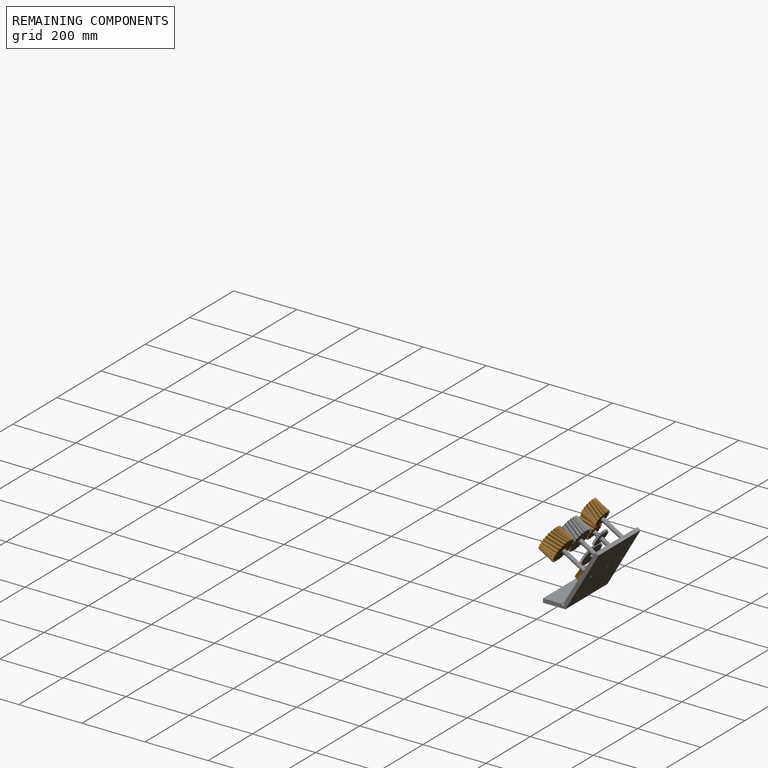
[diagram: remaining components — assembled]
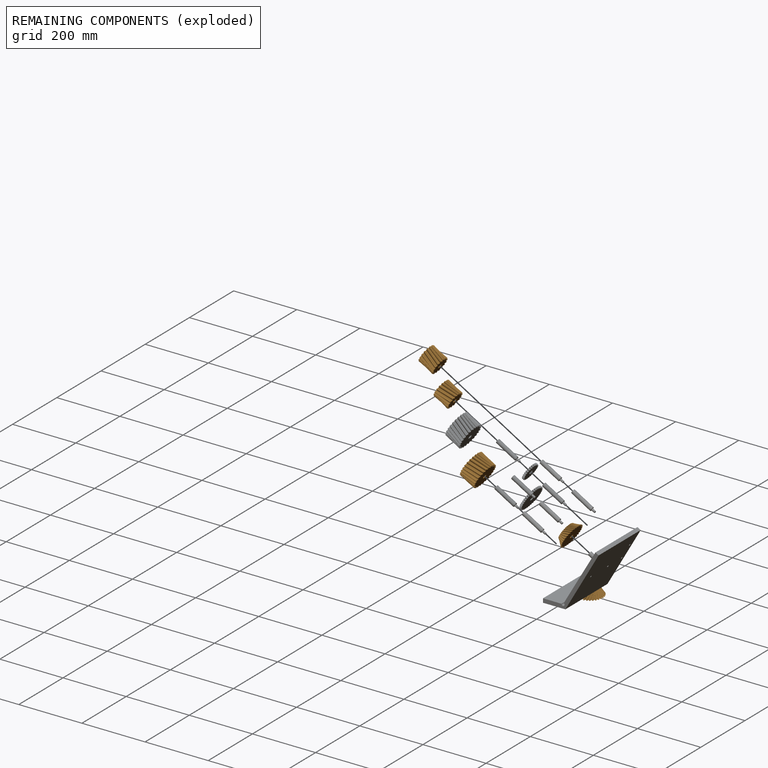
[diagram: remaining components — exploded]
REMAINING COMPONENTS (grouped) — the 5 components below fall outside the per-component tour by the significance rule stated above; both spotlight views highlight the whole group.
  P3: bounding box 81.3 x 81.3 x 22.1 mm, volume 68875 mm^3. Held by: REVOLUTE mate "Revolute 1" to P0.
  P4: bounding box 81.3 x 81.3 x 22.1 mm, volume 68874 mm^3. Held by: REVOLUTE mate "Revolute 2" to P0.
  P2: bounding box 82.5 x 82.5 x 50.8 mm, volume 234205 mm^3. Held by: REVOLUTE mate "Revolute 3" to P15.
  P12: bounding box 57.0 x 57.0 x 50.8 mm, volume 96499 mm^3. Held by: REVOLUTE mate "Revolute 7" to P13.
  P16: bounding box 57.0 x 57.0 x 50.8 mm, volume 96499 mm^3. Held by: REVOLUTE mate "Revolute 8" to P14.
PROVENANCE & LICENSES
Assembly (occurrences, transforms, mates, per-part STEP geometry): AutoMate dataset, Zenodo record 7776208, CC0.
Construction recipes: CADFS (HuggingFace VladPyatov/CADFS, CC-BY-4.0, layered over the ABC dataset), FeatureScript reconstruction programs keyed by ABC model id.
Join: ABC meta listings map ABC model id -> Onshape documentId; within a shared document, parts are matched by geometric signature (bounding-box dims + volume at 0.1% relative tolerance, exact B-rep face/solid counts).
Verification: 11 of this assembly's 17 components carry a recipe attachment, and every attachment is mesh-verified: the CADFS STEP and the AutoMate member STEP were compared as meshes in their shared local frame (symmetric sampled-point-to-mesh distance); worst across the 11 attachments: below the mesh-comparison resolution (tessellation chordal tolerance ~0.481 mm) on a 321 mm part.
Renders: orthographic iso camera (az 35 / el 25); the floor grid conveys scale (grid pitch printed in each image; no ruler). In the exploded view each component is displaced by its stored offset vector: the offsets alone carry the explosion direction (mate normal/axis signs are not orientation cues and do not encode it), and separation distances are assigned per mate-chain, not proportionally to assembly-order depth.
